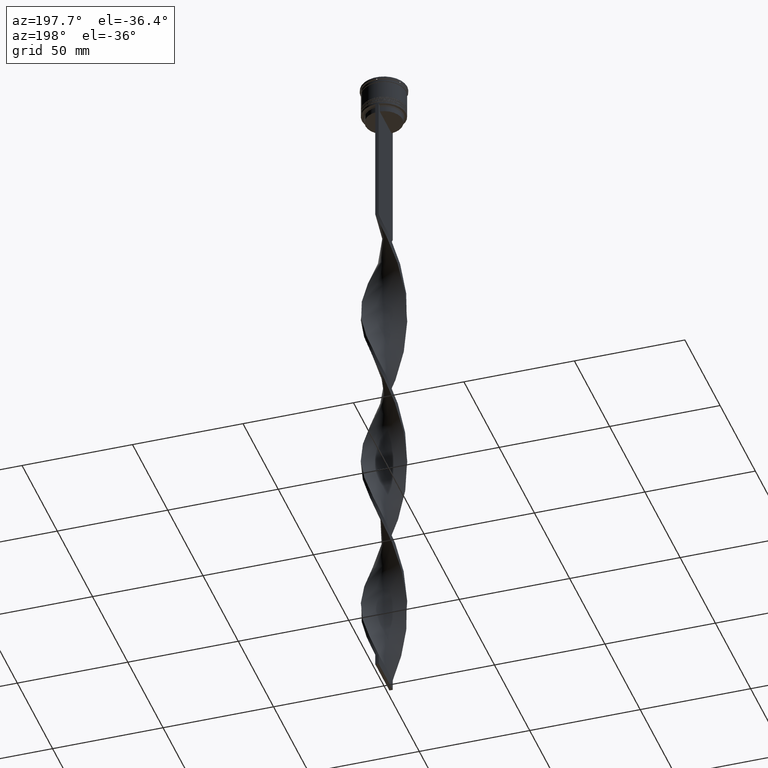
[diagram: clean part render]
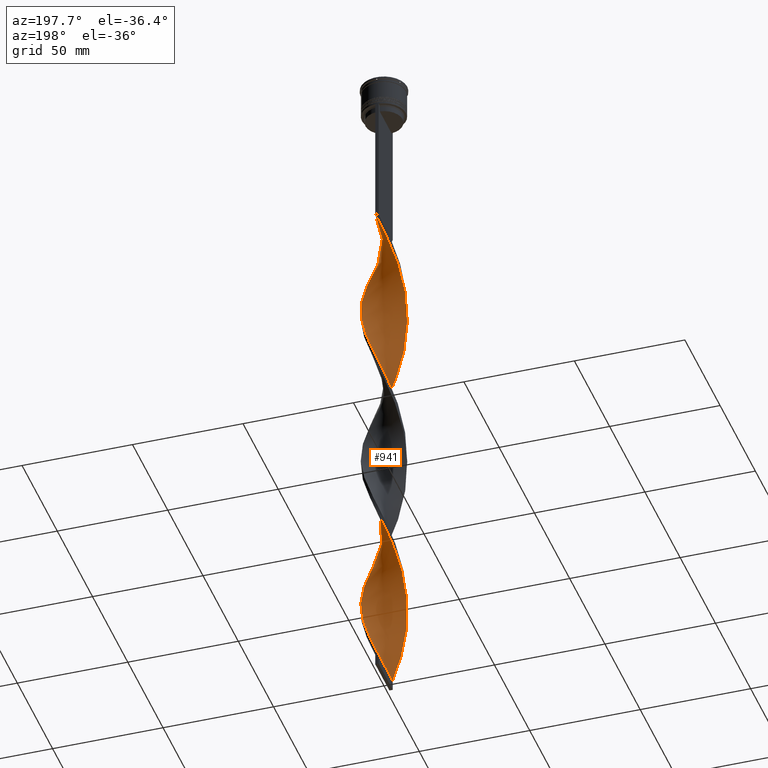
[diagram: same view with one face highlighted and labeled with its STEP entity id]
A machine part, auxiliary view. The second image highlights one B-rep face of the part: STEP entity #941.
In plain terms, the highlighted face is a freeform B-spline surface patch.
Its self-contained STEP definition (entity closure, byte-faithful):
#3 = CARTESIAN_POINT ( 'NONE',  ( -0.03701706824618429537, 10.05902628011846112, -232.3000000000000114 ) ) ;
#10 = CARTESIAN_POINT ( 'NONE',  ( -9.940973719881544213, -1.537017068246187668, -192.9666666666666970 ) ) ;
#20 = CARTESIAN_POINT ( 'NONE',  ( 9.759557557171202546, -2.305110905848663627, -187.0666666666666629 ) ) ;
#27 = B_SPLINE_CURVE_WITH_KNOTS ( 'NONE', 3,
 ( #1002, #2326, #3629, #1750 ),
 .UNSPECIFIED., .F., .F.,
 ( 4, 4 ),
 ( 0.000000000000000000, 1.000000000000000000 ),
 .UNSPECIFIED. ) ;
#29 = CARTESIAN_POINT ( 'NONE',  ( 9.278802417170330941, 3.803462330970840632, -277.5333333333333030 ) ) ;
#39 = CARTESIAN_POINT ( 'NONE',  ( -7.086630674828939824, 7.138980714781986592, -169.3666666666667027 ) ) ;
#46 = CARTESIAN_POINT ( 'NONE',  ( 9.250558116688338828, 3.871650104254189539, -202.8000000000000114 ) ) ;
#73 = CARTESIAN_POINT ( 'NONE',  ( -2.305110905848663183, -9.759557557171202546, -305.0666666666666629 ) ) ;
#80 = CARTESIAN_POINT ( 'NONE',  ( 9.994209254731556413, -0.8235783949559567496, -265.7333333333333485 ) ) ;
#86 = CARTESIAN_POINT ( 'NONE',  ( -3.871650104254190428, 9.250558116688338828, -84.80000000000001137 ) ) ;
#93 = CARTESIAN_POINT ( 'NONE',  ( 7.601397897755390431, -6.540737725975569461, -92.66666666666667140 ) ) ;
#101 = CARTESIAN_POINT ( 'NONE',  ( 3.143615391390495173, 9.555263588120860518, -299.1666666666666856 ) ) ;
#108 = CARTESIAN_POINT ( 'NONE',  ( -7.138980714781979486, 7.086630674828935383, -94.63333333333335418 ) ) ;
#117 = CARTESIAN_POINT ( 'NONE',  ( -5.208159890536744996, -8.569572367079015152, -297.2000000000000455 ) ) ;
#140 = CARTESIAN_POINT ( 'NONE',  ( -2.305110905848663183, -9.759557557171202546, -147.7333333333333201 ) ) ;
#147 = CARTESIAN_POINT ( 'NONE',  ( 9.578141394460878644, 3.073204743451140697, -118.2333333333333343 ) ) ;
#160 = CARTESIAN_POINT ( 'NONE',  ( -9.994209254731549308, -0.8235783949559543071, -116.2666666666666657 ) ) ;
#183 = VERTEX_POINT ( 'NONE', #2327 ) ;
#198 = CARTESIAN_POINT ( 'NONE',  ( -9.250558116688338828, -3.871650104254190428, -281.4666666666666401 ) ) ;
#203 = CARTESIAN_POINT ( 'NONE',  ( 9.940973719881544213, 1.537017068246184337, -271.6333333333332689 ) ) ;
#217 = CARTESIAN_POINT ( 'NONE',  ( 0.8235783949559537520, -9.994209254731549308, -155.6000000000000227 ) ) ;
#219 = CARTESIAN_POINT ( 'NONE',  ( -5.271089777143520116, 8.531008882968830420, -246.0666666666666629 ) ) ;
#235 = CARTESIAN_POINT ( 'NONE',  ( -2.376877556528107949, 9.742327908732745456, -238.1999999999999886 ) ) ;
#246 = CARTESIAN_POINT ( 'NONE',  ( -6.540737725975564132, 7.601397897755385102, -92.66666666666667140 ) ) ;
#249 = CARTESIAN_POINT ( 'NONE',  ( 8.945852645255824243, 4.599684817117886126, -204.7666666666666799 ) ) ;
#253 = EDGE_CURVE ( 'NONE', #183, #400, #1351, .T. ) ;
#271 = CARTESIAN_POINT ( 'NONE',  ( -5.882599862582949868, -8.159681294278259500, -137.9000000000000625 ) ) ;
#276 = CARTESIAN_POINT ( 'NONE',  ( -10.05902628011846112, -0.03701706824618352515, -271.6333333333332689 ) ) ;
#279 = CARTESIAN_POINT ( 'NONE',  ( -3.871650104254195757, -9.250558116688344157, -218.5333333333333314 ) ) ;
#280 = CARTESIAN_POINT ( 'NONE',  ( 7.649331004530123934, 6.484615268705943514, -285.3999999999999773 ) ) ;
#293 = CARTESIAN_POINT ( 'NONE',  ( 6.540737725975563244, -7.601397897755385991, -171.3333333333333428 ) ) ;
#299 = CARTESIAN_POINT ( 'NONE',  ( 8.159681294278264829, 5.882599862582951644, -126.1000000000000227 ) ) ;
#300 = CARTESIAN_POINT ( 'NONE',  ( -8.945852645255827795, 4.599684817117893232, -177.2333333333333485 ) ) ;
#312 = CARTESIAN_POINT ( 'NONE',  ( 5.882599862582947203, 8.159681294278261277, -216.5666666666666629 ) ) ;
#319 = CARTESIAN_POINT ( 'NONE',  ( 9.578141394460878644, 3.073204743451140253, -118.2333333333333485 ) ) ;
#320 = CARTESIAN_POINT ( 'NONE',  ( 6.540737725975569461, 7.601397897755389543, -289.3333333333333144 ) ) ;
#323 =( BOUNDED_SURFACE ( )  B_SPLINE_SURFACE ( 1, 2, ( 
 ( #2509, #3185, #3529, #3866, #3565, #901, #3824, #3884, #1223, #859, #246, #2850, #4186, #1881, #2218, #4169, #3547, #557, #1203, #1569, #577, #1268, #2915, #2522, #1896, #2892, #1915, #1248, #2180, #2564, #2834, #2238, #3240, #271, #1860, #595, #1592, #4234, #3507, #3808, #841, #532, #217, #2582, #3650, #3015, #1024, #3908, #658, #2957, #293, #965, #1349, #1979, #1676, #983, #369, #3990, #20, #2977, #3589, #1329, #2631, #677, #2000, #3305, #46, #3670, #3954, #2605, #3932, #618, #3344, #312, #693, #3325, #2306, #938, #1657, #2286, #3628, #3, #1938, #2649, #352, #1635, #1614, #2993, #3971, #2934, #1001, #1696, #2262, #2325, #640, #2666, #4255, #3262, #1289, #2349, #1960, #2016, #3286, #4277, #1314, #422, #4036, #3111, #1116, #1723, #3082, #3689, #3415, #3395, #117, #445, #764, #3435, #73, #738, #1093 ),
 ( #1375, #2443, #1445, #1749, #1768, #3741, #2086, #3061, #2763, #2420, #93, #787, #4086, #3134, #488, #1419, #3761, #2733, #3779, #2106, #3041, #1792, #4017, #147, #810, #2132, #3716, #1465, #4059, #2784, #2037, #4107, #1136, #1065, #1045, #2694, #2462, #1816, #3462, #714, #3367, #394, #1397, #2391, #550, #4181, #3540, #3949, #1691, #39, #2247, #1946, #2499, #300, #1600, #2616, #3943, #3915, #1988, #2640, #2922, #1518, #2840, #3814, #2315, #3515, #3962, #973, #4241, #3314, #948, #4159, #1275, #627, #847, #2272, #2294, #540, #3496, #3618, #2591, #1844, #2942, #3637, #1172, #3599, #3831, #3271, #3170, #666, #1495, #4288, #2817, #992, #1191, #1868, #518, #3248, #2514, #3294, #1298, #203, #1622, #2167, #4263, #2184, #866, #647, #280, #1968, #320, #4138, #1322, #1644, #2967, #1033, #2401, #2026, #495, #1548, #2383 ) ),
 .UNSPECIFIED., .F., .F., .F. ) 
 B_SPLINE_SURFACE_WITH_KNOTS ( ( 2, 2 ),
 ( 3, 2, 2, 2, 2, 2, 2, 2, 2, 2, 2, 2, 2, 2, 2, 2, 2, 2, 2, 2, 2, 2, 2, 2, 2, 2, 2, 2, 2, 2, 2, 2, 2, 2, 2, 2, 2, 2, 2, 2, 2, 2, 2, 2, 2, 2, 2, 2, 2, 2, 2, 2, 2, 2, 2, 2, 2, 2, 2, 2, 3 ),
 ( 0.000000000000000000, 1.000000000000000000 ),
 ( 0.000000000000000000, 0.01250000000000000069, 0.02500000000000000139, 0.03749999999999999861, 0.05000000000000000278, 0.06250000000000000000, 0.07499999999999999722, 0.08749999999999999445, 0.1000000000000000056, 0.1125000000000000028, 0.1250000000000000000, 0.1375000000000000111, 0.1499999999999999944, 0.1625000000000000056, 0.1749999999999999889, 0.1875000000000000000, 0.2000000000000000111, 0.2124999999999999944, 0.2250000000000000056, 0.2374999999999999889, 0.2500000000000000000, 0.2625000000000000111, 0.2750000000000000222, 0.2874999999999999778, 0.2999999999999999889, 0.3125000000000000000, 0.3250000000000000111, 0.3375000000000000222, 0.3499999999999999778, 0.3624999999999999889, 0.3750000000000000000, 0.3875000000000000111, 0.4000000000000000222, 0.4124999999999999778, 0.4249999999999999889, 0.4375000000000000000, 0.4500000000000000111, 0.4625000000000000222, 0.4749999999999999778, 0.4874999999999999889, 0.5000000000000000000, 0.5124999999999999556, 0.5250000000000000222, 0.5374999999999999778, 0.5500000000000000444, 0.5625000000000000000, 0.5749999999999999556, 0.5875000000000000222, 0.5999999999999999778, 0.6125000000000000444, 0.6250000000000000000, 0.6374999999999999556, 0.6500000000000000222, 0.6624999999999999778, 0.6750000000000000444, 0.6875000000000000000, 0.6999999999999999556, 0.7125000000000000222, 0.7249999999999999778, 0.7375000000000000444, 0.7500000000000000000 ),
 .UNSPECIFIED. ) 
 GEOMETRIC_REPRESENTATION_ITEM ( )  RATIONAL_B_SPLINE_SURFACE ( (
 ( 1.000000000000000000, 0.9969173337331279638, 1.000000000000000000, 0.9969173337331279638, 1.000000000000000000, 0.9969173337331279638, 1.000000000000000000, 0.9969173337331279638, 1.000000000000000000, 0.9969173337331279638, 1.000000000000000000, 0.9969173337331279638, 1.000000000000000000, 0.9969173337331279638, 1.000000000000000000, 0.9969173337331279638, 1.000000000000000000, 0.9969173337331279638, 1.000000000000000000, 0.9969173337331279638, 1.000000000000000000, 0.9969173337331279638, 1.000000000000000000, 0.9969173337331279638, 1.000000000000000000, 0.9969173337331279638, 1.000000000000000000, 0.9969173337331279638, 1.000000000000000000, 0.9969173337331279638, 1.000000000000000000, 0.9969173337331279638, 1.000000000000000000, 0.9969173337331279638, 1.000000000000000000, 0.9969173337331279638, 1.000000000000000000, 0.9969173337331279638, 1.000000000000000000, 0.9969173337331279638, 1.000000000000000000, 0.9969173337331279638, 1.000000000000000000, 0.9969173337331279638, 1.000000000000000000, 0.9969173337331279638, 1.000000000000000000, 0.9969173337331279638, 1.000000000000000000, 0.9969173337331279638, 1.000000000000000000, 0.9969173337331279638, 1.000000000000000000, 0.9969173337331279638, 1.000000000000000000, 0.9969173337331279638, 1.000000000000000000, 0.9969173337331279638, 1.000000000000000000, 0.9969173337331279638, 1.000000000000000000, 0.9969173337331279638, 1.000000000000000000, 0.9969173337331279638, 1.000000000000000000, 0.9969173337331279638, 1.000000000000000000, 0.9969173337331279638, 1.000000000000000000, 0.9969173337331279638, 1.000000000000000000, 0.9969173337331279638, 1.000000000000000000, 0.9969173337331279638, 1.000000000000000000, 0.9969173337331279638, 1.000000000000000000, 0.9969173337331279638, 1.000000000000000000, 0.9969173337331279638, 1.000000000000000000, 0.9969173337331279638, 1.000000000000000000, 0.9969173337331279638, 1.000000000000000000, 0.9969173337331279638, 1.000000000000000000, 0.9969173337331279638, 1.000000000000000000, 0.9969173337331279638, 1.000000000000000000, 0.9969173337331279638, 1.000000000000000000, 0.9969173337331279638, 1.000000000000000000, 0.9969173337331279638, 1.000000000000000000, 0.9969173337331279638, 1.000000000000000000, 0.9969173337331279638, 1.000000000000000000, 0.9969173337331279638, 1.000000000000000000, 0.9969173337331279638, 1.000000000000000000, 0.9969173337331279638, 1.000000000000000000, 0.9969173337331279638, 1.000000000000000000, 0.9969173337331279638, 1.000000000000000000, 0.9969173337331279638, 1.000000000000000000, 0.9969173337331279638, 1.000000000000000000, 0.9969173337331279638, 1.000000000000000000, 0.9969173337331279638, 1.000000000000000000, 0.9969173337331279638, 1.000000000000000000),
 ( 1.000000000000000000, 0.9969173337331279638, 1.000000000000000000, 0.9969173337331279638, 1.000000000000000000, 0.9969173337331279638, 1.000000000000000000, 0.9969173337331279638, 1.000000000000000000, 0.9969173337331279638, 1.000000000000000000, 0.9969173337331279638, 1.000000000000000000, 0.9969173337331279638, 1.000000000000000000, 0.9969173337331279638, 1.000000000000000000, 0.9969173337331279638, 1.000000000000000000, 0.9969173337331279638, 1.000000000000000000, 0.9969173337331279638, 1.000000000000000000, 0.9969173337331279638, 1.000000000000000000, 0.9969173337331279638, 1.000000000000000000, 0.9969173337331279638, 1.000000000000000000, 0.9969173337331279638, 1.000000000000000000, 0.9969173337331279638, 1.000000000000000000, 0.9969173337331279638, 1.000000000000000000, 0.9969173337331279638, 1.000000000000000000, 0.9969173337331279638, 1.000000000000000000, 0.9969173337331279638, 1.000000000000000000, 0.9969173337331279638, 1.000000000000000000, 0.9969173337331279638, 1.000000000000000000, 0.9969173337331279638, 1.000000000000000000, 0.9969173337331279638, 1.000000000000000000, 0.9969173337331279638, 1.000000000000000000, 0.9969173337331279638, 1.000000000000000000, 0.9969173337331279638, 1.000000000000000000, 0.9969173337331279638, 1.000000000000000000, 0.9969173337331279638, 1.000000000000000000, 0.9969173337331279638, 1.000000000000000000, 0.9969173337331279638, 1.000000000000000000, 0.9969173337331279638, 1.000000000000000000, 0.9969173337331279638, 1.000000000000000000, 0.9969173337331279638, 1.000000000000000000, 0.9969173337331279638, 1.000000000000000000, 0.9969173337331279638, 1.000000000000000000, 0.9969173337331279638, 1.000000000000000000, 0.9969173337331279638, 1.000000000000000000, 0.9969173337331279638, 1.000000000000000000, 0.9969173337331279638, 1.000000000000000000, 0.9969173337331279638, 1.000000000000000000, 0.9969173337331279638, 1.000000000000000000, 0.9969173337331279638, 1.000000000000000000, 0.9969173337331279638, 1.000000000000000000, 0.9969173337331279638, 1.000000000000000000, 0.9969173337331279638, 1.000000000000000000, 0.9969173337331279638, 1.000000000000000000, 0.9969173337331279638, 1.000000000000000000, 0.9969173337331279638, 1.000000000000000000, 0.9969173337331279638, 1.000000000000000000, 0.9969173337331279638, 1.000000000000000000, 0.9969173337331279638, 1.000000000000000000, 0.9969173337331279638, 1.000000000000000000, 0.9969173337331279638, 1.000000000000000000, 0.9969173337331279638, 1.000000000000000000, 0.9969173337331279638, 1.000000000000000000, 0.9969173337331279638, 1.000000000000000000, 0.9969173337331279638, 1.000000000000000000, 0.9969173337331279638, 1.000000000000000000, 0.9969173337331279638, 1.000000000000000000) ) ) 
 REPRESENTATION_ITEM ( '' )  SURFACE ( )  );
#344 = CARTESIAN_POINT ( 'NONE',  ( 3.871650104254194869, 9.250558116688344157, -139.8666666666666742 ) ) ;
#352 = CARTESIAN_POINT ( 'NONE',  ( -2.376877556528108393, 9.742327908732745456, -238.1999999999999886 ) ) ;
#360 = CARTESIAN_POINT ( 'NONE',  ( -10.05902628011847000, 0.03701706824619112324, -189.0333333333333314 ) ) ;
#369 = CARTESIAN_POINT ( 'NONE',  ( 9.278802417170323835, -3.803462330970840188, -183.1333333333333258 ) ) ;
#377 = CARTESIAN_POINT ( 'NONE',  ( 5.271089777143525446, 8.531008882968833973, -293.2666666666666515 ) ) ;
#394 = CARTESIAN_POINT ( 'NONE',  ( -1.537017068246183671, 9.940973719881544213, -153.6333333333333826 ) ) ;
#400 = VERTEX_POINT ( 'NONE', #1026 ) ;
#403 = CARTESIAN_POINT ( 'NONE',  ( 4.533719918490542788, -8.979463439879785014, -240.1666666666666856 ) ) ;
#415 = CARTESIAN_POINT ( 'NONE',  ( -1.610139721665725832, 9.929392229344633947, -78.90000000000001990 ) ) ;
#422 = CARTESIAN_POINT ( 'NONE',  ( -9.555263588120853413, -3.143615391390491620, -279.4999999999999432 ) ) ;
#431 = CARTESIAN_POINT ( 'NONE',  ( 9.555263588120860518, -3.143615391390494285, -259.8333333333334281 ) ) ;
#438 = CARTESIAN_POINT ( 'NONE',  ( -0.8235783949559549733, 9.994209254731549308, -76.93333333333333712 ) ) ;
#440 = ORIENTED_EDGE ( 'NONE', *, *, #1076, .F. ) ;
#445 = CARTESIAN_POINT ( 'NONE',  ( -4.533719918490541012, -8.979463439879779685, -299.1666666666666856 ) ) ;
#451 = CARTESIAN_POINT ( 'NONE',  ( 6.540737725975569461, 7.601397897755389543, -289.3333333333333144 ) ) ;
#458 = CARTESIAN_POINT ( 'NONE',  ( 0.7500000000000002220, 9.999999999999998224, -73.00000000000001421 ) ) ;
#472 = CARTESIAN_POINT ( 'NONE',  ( 1.537017068246185003, -9.940973719881544213, -232.3000000000000398 ) ) ;
#481 = CARTESIAN_POINT ( 'NONE',  ( -5.208159890536744996, -8.569572367079015152, -139.8666666666666742 ) ) ;
#488 = CARTESIAN_POINT ( 'NONE',  ( 9.250558116688344157, -3.871650104254194869, -100.5333333333333314 ) ) ;
#495 = CARTESIAN_POINT ( 'NONE',  ( 0.8235783949559573047, 9.994209254731554637, -305.0666666666666629 ) ) ;
#501 = CARTESIAN_POINT ( 'NONE',  ( 1.537017068246185003, -9.940973719881544213, -74.96666666666668277 ) ) ;
#502 = CARTESIAN_POINT ( 'NONE',  ( 7.138980714781975934, -7.086630674828939824, -173.3000000000000114 ) ) ;
#504 = ORIENTED_EDGE ( 'NONE', *, *, #2683, .T. ) ;
#515 = CARTESIAN_POINT ( 'NONE',  ( 10.05902628011846112, 0.03701706824618678643, -192.9666666666666970 ) ) ;
#518 = CARTESIAN_POINT ( 'NONE',  ( 9.742327908732750785, -2.376877556528111057, -261.7999999999999545 ) ) ;
#531 = CARTESIAN_POINT ( 'NONE',  ( -0.7500000000000014433, -9.999999999999998224, -309.0000000000000000 ) ) ;
#532 = CARTESIAN_POINT ( 'NONE',  ( 0.03701706824618297698, -10.05902628011846112, -153.6333333333333826 ) ) ;
#535 = CARTESIAN_POINT ( 'NONE',  ( -9.759557557171204323, 2.305110905848662739, -265.7333333333333485 ) ) ;
#540 = CARTESIAN_POINT ( 'NONE',  ( -1.610139721665725832, -9.929392229344641052, -224.4333333333333655 ) ) ;
#550 = CARTESIAN_POINT ( 'NONE',  ( -3.803462330970839744, 9.278802417170330941, -159.5333333333333314 ) ) ;
#557 = CARTESIAN_POINT ( 'NONE',  ( -9.578141394460869762, 3.073204743451140697, -106.4333333333333513 ) ) ;
#560 = CARTESIAN_POINT ( 'NONE',  ( -9.578141394460869762, 3.073204743451140697, -263.7666666666667084 ) ) ;
#563 = CARTESIAN_POINT ( 'NONE',  ( 9.759557557171202546, -2.305110905848663627, -187.0666666666666629 ) ) ;
#577 = CARTESIAN_POINT ( 'NONE',  ( -9.999999999999998224, 0.7500000000000007772, -112.3333333333333428 ) ) ;
#580 = CARTESIAN_POINT ( 'NONE',  ( -9.278802417170323835, 3.803462330970839744, -261.7999999999999545 ) ) ;
#595 = CARTESIAN_POINT ( 'NONE',  ( -4.533719918490541012, -8.979463439879779685, -141.8333333333333144 ) ) ;
#598 = CARTESIAN_POINT ( 'NONE',  ( -5.942494737169148777, 8.116165120681838374, -248.0333333333333599 ) ) ;
#600 = CARTESIAN_POINT ( 'NONE',  ( -9.759557557171209652, -2.305110905848660963, -194.9333333333333371 ) ) ;
#618 = CARTESIAN_POINT ( 'NONE',  ( 7.086630674828940712, 7.138980714781974157, -212.6333333333333826 ) ) ;
#626 = CARTESIAN_POINT ( 'NONE',  ( -1.610139721665725610, -9.929392229344642828, -224.4333333333333371 ) ) ;
#627 = CARTESIAN_POINT ( 'NONE',  ( -4.599684817117894120, -8.945852645255826019, -216.5666666666666629 ) ) ;
#632 = ORIENTED_EDGE ( 'NONE', *, *, #3224, .F. ) ;
#640 = CARTESIAN_POINT ( 'NONE',  ( -8.569572367079015152, 5.208159890536744108, -257.8666666666666742 ) ) ;
#646 = CARTESIAN_POINT ( 'NONE',  ( -8.116165120681841927, 5.942494737169157659, -173.3000000000000114 ) ) ;
#647 = CARTESIAN_POINT ( 'NONE',  ( 8.159681294278264829, 5.882599862582952532, -283.4333333333333940 ) ) ;
#658 = CARTESIAN_POINT ( 'NONE',  ( 5.271089777143518340, -8.531008882968828644, -167.4000000000000057 ) ) ;
#665 = CARTESIAN_POINT ( 'NONE',  ( 9.994209254731556413, -0.8235783949559567496, -108.3999999999999915 ) ) ;
#666 = CARTESIAN_POINT ( 'NONE',  ( 7.086630674828940712, -7.138980714781985704, -248.0333333333333314 ) ) ;
#677 = CARTESIAN_POINT ( 'NONE',  ( 9.929392229344635723, 1.610139721665719836, -196.9000000000000057 ) ) ;
#685 = CARTESIAN_POINT ( 'NONE',  ( -3.803462330970839744, 9.278802417170330941, -159.5333333333333314 ) ) ;
#693 = CARTESIAN_POINT ( 'NONE',  ( 5.208159890536744996, 8.569572367079015152, -218.5333333333333314 ) ) ;
#702 = CARTESIAN_POINT ( 'NONE',  ( -0.03701706824619165753, -10.05902628011847000, -228.3666666666666742 ) ) ;
#714 = CARTESIAN_POINT ( 'NONE',  ( 0.03701706824618614111, 10.05902628011846822, -149.7000000000000455 ) ) ;
#732 = CARTESIAN_POINT ( 'NONE',  ( -0.7500000000000014433, -9.999999999999998224, -151.6666666666666856 ) ) ;
#738 = CARTESIAN_POINT ( 'NONE',  ( -1.537017068246185891, -9.940973719881535331, -307.0333333333333030 ) ) ;
#745 = CARTESIAN_POINT ( 'NONE',  ( 0.7500000000000001110, -10.00000000000000533, -230.3333333333333428 ) ) ;
#755 = CARTESIAN_POINT ( 'NONE',  ( 0.7500000000000001110, -10.00000000000000533, -73.00000000000001421 ) ) ;
#764 = CARTESIAN_POINT ( 'NONE',  ( -3.803462330970839744, -9.278802417170323835, -301.1333333333333258 ) ) ;
#773 = CARTESIAN_POINT ( 'NONE',  ( 9.759557557171209652, 2.305110905848662739, -273.5999999999999659 ) ) ;
#781 = CARTESIAN_POINT ( 'NONE',  ( -1.537017068246185891, -9.940973719881535331, -149.7000000000000171 ) ) ;
#787 = CARTESIAN_POINT ( 'NONE',  ( 8.116165120681840150, -5.942494737169153218, -94.63333333333335418 ) ) ;
#795 = CARTESIAN_POINT ( 'NONE',  ( 3.871650104254194869, 9.250558116688344157, -297.2000000000000455 ) ) ;
#802 = CARTESIAN_POINT ( 'NONE',  ( 5.942494737169147889, -8.116165120681841927, -169.3666666666667027 ) ) ;
#810 = CARTESIAN_POINT ( 'NONE',  ( 9.278802417170330941, 3.803462330970840632, -120.2000000000000028 ) ) ;
#826 = CARTESIAN_POINT ( 'NONE',  ( 6.540737725975562356, -7.601397897755385991, -171.3333333333333428 ) ) ;
#841 = CARTESIAN_POINT ( 'NONE',  ( -0.7500000000000013323, -9.999999999999998224, -151.6666666666666856 ) ) ;
#843 = CARTESIAN_POINT ( 'NONE',  ( -8.531008882968830420, -5.271089777143518340, -285.3999999999999773 ) ) ;
#847 = CARTESIAN_POINT ( 'NONE',  ( -3.871650104254195757, -9.250558116688344157, -218.5333333333333314 ) ) ;
#859 = CARTESIAN_POINT ( 'NONE',  ( -5.942494737169148777, 8.116165120681838374, -90.70000000000001705 ) ) ;
#862 = CARTESIAN_POINT ( 'NONE',  ( -9.929392229344635723, -1.610139721665724943, -275.5666666666666060 ) ) ;
#866 = CARTESIAN_POINT ( 'NONE',  ( 8.569572367079022257, 5.208159890536745884, -281.4666666666666401 ) ) ;
#883 = CARTESIAN_POINT ( 'NONE',  ( 3.803462330970841521, 9.278802417170323835, -222.4666666666666686 ) ) ;
#901 = CARTESIAN_POINT ( 'NONE',  ( -3.143615391390491620, 9.555263588120853413, -82.83333333333335702 ) ) ;
#904 = CARTESIAN_POINT ( 'NONE',  ( 4.533719918490546341, 8.979463439879776132, -220.5000000000000284 ) ) ;
#906 = CARTESIAN_POINT ( 'NONE',  ( 5.208159890536745884, -8.569572367079022257, -84.80000000000001137 ) ) ;
#924 = CARTESIAN_POINT ( 'NONE',  ( -0.7500000000000014433, -9.999999999999998224, -309.0000000000000000 ) ) ;
#926 = CARTESIAN_POINT ( 'NONE',  ( -5.271089777143526334, -8.531008882968833973, -214.5999999999999943 ) ) ;
#938 = CARTESIAN_POINT ( 'NONE',  ( 3.073204743451137588, 9.578141394460871538, -224.4333333333333655 ) ) ;
#941 = ADVANCED_FACE ( 'NONE', ( #1185 ), #323, .T. ) ;
#947 = CARTESIAN_POINT ( 'NONE',  ( -3.143615391390500502, -9.555263588120856966, -220.5000000000000284 ) ) ;
#948 = CARTESIAN_POINT ( 'NONE',  ( -6.540737725975570349, -7.601397897755387767, -210.6666666666666572 ) ) ;
#965 = CARTESIAN_POINT ( 'NONE',  ( 7.138980714781975934, -7.086630674828940712, -173.3000000000000114 ) ) ;
#972 = CARTESIAN_POINT ( 'NONE',  ( 1.610139721665729162, 9.929392229344641052, -145.7666666666666515 ) ) ;
#973 = CARTESIAN_POINT ( 'NONE',  ( -8.159681294278266606, -5.882599862582948091, -204.7666666666666799 ) ) ;
#983 = CARTESIAN_POINT ( 'NONE',  ( 8.979463439879777908, -4.533719918490545453, -181.1666666666667140 ) ) ;
#991 = CARTESIAN_POINT ( 'NONE',  ( -5.208159890536744996, 8.569572367079022257, -163.4666666666666401 ) ) ;
#992 = CARTESIAN_POINT ( 'NONE',  ( 8.945852645255826019, -4.599684817117896785, -255.9000000000000909 ) ) ;
#1001 = CARTESIAN_POINT ( 'NONE',  ( -6.540737725975564132, 7.601397897755385102, -250.0000000000000000 ) ) ;
#1002 = CARTESIAN_POINT ( 'NONE',  ( -0.7500000000000014433, -9.999999999999998224, -309.0000000000000000 ) ) ;
#1008 = CARTESIAN_POINT ( 'NONE',  ( -1.537017068246183671, 9.940973719881544213, -153.6333333333333826 ) ) ;
#1024 = CARTESIAN_POINT ( 'NONE',  ( 3.871650104254189539, -9.250558116688338828, -163.4666666666666401 ) ) ;
#1026 = CARTESIAN_POINT ( 'NONE',  ( 0.7500000000000002220, 9.999999999999998224, -73.00000000000001421 ) ) ;
#1032 = CARTESIAN_POINT ( 'NONE',  ( 9.742327908732750785, -2.376877556528111057, -261.7999999999999545 ) ) ;
#1033 = CARTESIAN_POINT ( 'NONE',  ( 3.143615391390495173, 9.555263588120860518, -299.1666666666666856 ) ) ;
#1045 = CARTESIAN_POINT ( 'NONE',  ( 3.871650104254194869, 9.250558116688344157, -139.8666666666666742 ) ) ;
#1065 = CARTESIAN_POINT ( 'NONE',  ( 4.599684817117896785, 8.945852645255826019, -137.9000000000000625 ) ) ;
#1074 = CARTESIAN_POINT ( 'NONE',  ( 9.250558116688344157, -3.871650104254194869, -257.8666666666666742 ) ) ;
#1076 = EDGE_CURVE ( 'NONE', #400, #2810, #2866, .T. ) ;
#1084 = CARTESIAN_POINT ( 'NONE',  ( -5.882599862582948980, -8.159681294278255947, -137.9000000000000625 ) ) ;
#1093 = CARTESIAN_POINT ( 'NONE',  ( -0.7500000000000013323, -9.999999999999998224, -309.0000000000000000 ) ) ;
#1102 = CARTESIAN_POINT ( 'NONE',  ( 10.05902628011846822, -0.03701706824618537089, -267.6999999999999318 ) ) ;
#1116 = CARTESIAN_POINT ( 'NONE',  ( -8.531008882968828644, -5.271089777143518340, -285.3999999999999773 ) ) ;
#1131 = CARTESIAN_POINT ( 'NONE',  ( 3.143615391390490732, -9.555263588120853413, -161.5000000000000000 ) ) ;
#1136 = CARTESIAN_POINT ( 'NONE',  ( 5.271089777143525446, 8.531008882968833973, -135.9333333333333371 ) ) ;
#1147 = CARTESIAN_POINT ( 'NONE',  ( -9.278802417170323835, 3.803462330970839744, -104.4666666666666828 ) ) ;
#1151 = VERTEX_POINT ( 'NONE', #2636 ) ;
#1166 = CARTESIAN_POINT ( 'NONE',  ( -7.138980714781979486, 7.086630674828935383, -251.9666666666666686 ) ) ;
#1172 = CARTESIAN_POINT ( 'NONE',  ( 3.803462330970840632, -9.278802417170329164, -238.1999999999999886 ) ) ;
#1185 = FACE_OUTER_BOUND ( 'NONE', #2440, .T. ) ;
#1189 = CARTESIAN_POINT ( 'NONE',  ( 9.994209254731549308, 0.8235783949559529749, -194.9333333333333371 ) ) ;
#1191 = CARTESIAN_POINT ( 'NONE',  ( 9.250558116688344157, -3.871650104254194869, -257.8666666666666742 ) ) ;
#1203 = CARTESIAN_POINT ( 'NONE',  ( -9.759557557171204323, 2.305110905848662739, -108.3999999999999915 ) ) ;
#1206 = CARTESIAN_POINT ( 'NONE',  ( -4.533719918490541012, -8.979463439879777908, -299.1666666666666856 ) ) ;
#1223 = CARTESIAN_POINT ( 'NONE',  ( -5.271089777143520116, 8.531008882968830420, -88.73333333333334849 ) ) ;
#1227 = CARTESIAN_POINT ( 'NONE',  ( -7.649331004530118605, 6.484615268705940849, -253.9333333333333371 ) ) ;
#1248 = CARTESIAN_POINT ( 'NONE',  ( -8.945852645255820690, -4.599684817117892344, -126.1000000000000369 ) ) ;
#1251 = CARTESIAN_POINT ( 'NONE',  ( -8.116165120681838374, -5.942494737169147889, -287.3666666666667311 ) ) ;
#1253 = CARTESIAN_POINT ( 'NONE',  ( -4.533719918490541900, 8.979463439879785014, -161.5000000000000000 ) ) ;
#1268 = CARTESIAN_POINT ( 'NONE',  ( -10.05902628011846112, -0.03701706824618363617, -114.3000000000000398 ) ) ;
#1274 = CARTESIAN_POINT ( 'NONE',  ( -8.569572367079024033, -5.208159890536744996, -202.8000000000000114 ) ) ;
#1275 = CARTESIAN_POINT ( 'NONE',  ( -5.271089777143526334, -8.531008882968833973, -214.5999999999999943 ) ) ;
#1289 = CARTESIAN_POINT ( 'NONE',  ( -9.759557557171204323, 2.305110905848662739, -265.7333333333333485 ) ) ;
#1297 = CARTESIAN_POINT ( 'NONE',  ( 9.759557557171209652, 2.305110905848662739, -116.2666666666666657 ) ) ;
#1298 = CARTESIAN_POINT ( 'NONE',  ( 10.00000000000000533, 0.7499999999999994449, -269.6666666666666856 ) ) ;
#1314 = CARTESIAN_POINT ( 'NONE',  ( -9.742327908732745456, -2.376877556528107949, -277.5333333333333030 ) ) ;
#1320 = CARTESIAN_POINT ( 'NONE',  ( -9.250558116688344157, 3.871650104254195757, -179.1999999999999886 ) ) ;
#1322 = CARTESIAN_POINT ( 'NONE',  ( 5.271089777143525446, 8.531008882968833973, -293.2666666666666515 ) ) ;
#1329 = CARTESIAN_POINT ( 'NONE',  ( 10.05902628011846112, 0.03701706824618689745, -192.9666666666666970 ) ) ;
#1337 = CARTESIAN_POINT ( 'NONE',  ( -9.578141394460880420, -3.073204743451134924, -196.9000000000000057 ) ) ;
#1349 = CARTESIAN_POINT ( 'NONE',  ( 7.649331004530116829, -6.484615268705941737, -175.2666666666666799 ) ) ;
#1351 = LINE ( 'NONE', #3992, #3014 ) ;
#1357 = CARTESIAN_POINT ( 'NONE',  ( 3.073204743451140697, -9.578141394460876867, -236.2333333333333485 ) ) ;
#1375 = CARTESIAN_POINT ( 'NONE',  ( 0.7500000000000001110, -10.00000000000000533, -73.00000000000001421 ) ) ;
#1385 = CARTESIAN_POINT ( 'NONE',  ( 5.942494737169154106, 8.116165120681841927, -291.3000000000000682 ) ) ;
#1397 = CARTESIAN_POINT ( 'NONE',  ( -2.305110905848661851, 9.759557557171209652, -155.6000000000000227 ) ) ;
#1411 = CARTESIAN_POINT ( 'NONE',  ( -8.159681294278255947, 5.882599862582948980, -98.56666666666669130 ) ) ;
#1419 = CARTESIAN_POINT ( 'NONE',  ( 9.555263588120860518, -3.143615391390494285, -102.5000000000000000 ) ) ;
#1427 = CARTESIAN_POINT ( 'NONE',  ( 1.610139721665729162, 9.929392229344641052, -303.0999999999999659 ) ) ;
#1431 = ORIENTED_EDGE ( 'NONE', *, *, #253, .F. ) ;
#1438 = CARTESIAN_POINT ( 'NONE',  ( -9.555263588120853413, -3.143615391390491176, -122.1666666666666856 ) ) ;
#1445 = CARTESIAN_POINT ( 'NONE',  ( 2.305110905848663183, -9.759557557171209652, -76.93333333333333712 ) ) ;
#1460 = CARTESIAN_POINT ( 'NONE',  ( 0.03701706824618287983, -10.05902628011846112, -153.6333333333333826 ) ) ;
#1465 = CARTESIAN_POINT ( 'NONE',  ( 8.159681294278264829, 5.882599862582952532, -126.1000000000000369 ) ) ;
#1479 = CARTESIAN_POINT ( 'NONE',  ( -7.601397897755385102, -6.540737725975563244, -132.0000000000000000 ) ) ;
#1495 = CARTESIAN_POINT ( 'NONE',  ( 7.601397897755390431, -6.540737725975569461, -250.0000000000000000 ) ) ;
#1514 = CARTESIAN_POINT ( 'NONE',  ( -1.537017068246185891, -9.940973719881535331, -307.0333333333333030 ) ) ;
#1518 = CARTESIAN_POINT ( 'NONE',  ( -9.940973719881544213, -1.537017068246187446, -192.9666666666666970 ) ) ;
#1535 = CARTESIAN_POINT ( 'NONE',  ( -9.742327908732745456, -2.376877556528107505, -277.5333333333333030 ) ) ;
#1548 = CARTESIAN_POINT ( 'NONE',  ( 0.03701706824618614111, 10.05902628011846822, -307.0333333333333030 ) ) ;
#1551 = CARTESIAN_POINT ( 'NONE',  ( 9.250558116688338828, 3.871650104254189539, -202.8000000000000114 ) ) ;
#1556 = CARTESIAN_POINT ( 'NONE',  ( 9.940973719881533555, -1.537017068246190998, -189.0333333333333314 ) ) ;
#1569 = CARTESIAN_POINT ( 'NONE',  ( -9.940973719881535331, 1.537017068246185003, -110.3666666666666600 ) ) ;
#1573 = CARTESIAN_POINT ( 'NONE',  ( 9.929392229344637499, 1.610139721665719614, -196.9000000000000057 ) ) ;
#1575 = CARTESIAN_POINT ( 'NONE',  ( 7.601397897755390431, -6.540737725975569461, -92.66666666666667140 ) ) ;
#1592 = CARTESIAN_POINT ( 'NONE',  ( -3.803462330970839744, -9.278802417170323835, -143.7999999999999829 ) ) ;
#1599 = CARTESIAN_POINT ( 'NONE',  ( 5.942494737169154106, 8.116165120681841927, -133.9666666666666686 ) ) ;
#1600 = CARTESIAN_POINT ( 'NONE',  ( -9.250558116688344157, 3.871650104254195757, -179.1999999999999886 ) ) ;
#1614 = CARTESIAN_POINT ( 'NONE',  ( -3.871650104254190428, 9.250558116688338828, -242.1333333333333258 ) ) ;
#1621 = CARTESIAN_POINT ( 'NONE',  ( 0.03701706824618613417, 10.05902628011846822, -149.7000000000000171 ) ) ;
#1622 = CARTESIAN_POINT ( 'NONE',  ( 9.759557557171209652, 2.305110905848662739, -273.5999999999999659 ) ) ;
#1635 = CARTESIAN_POINT ( 'NONE',  ( -3.143615391390491620, 9.555263588120853413, -240.1666666666667140 ) ) ;
#1643 = CARTESIAN_POINT ( 'NONE',  ( -7.086630674828938936, 7.138980714781986592, -169.3666666666667027 ) ) ;
#1644 = CARTESIAN_POINT ( 'NONE',  ( 4.599684817117896785, 8.945852645255826019, -295.2333333333332916 ) ) ;
#1657 = CARTESIAN_POINT ( 'NONE',  ( 2.305110905848663627, 9.759557557171202546, -226.3999999999999773 ) ) ;
#1667 = CARTESIAN_POINT ( 'NONE',  ( -9.742327908732750785, 2.376877556528111946, -183.1333333333333258 ) ) ;
#1676 = CARTESIAN_POINT ( 'NONE',  ( 8.569572367079015152, -5.208159890536744996, -179.1999999999999886 ) ) ;
#1684 = CARTESIAN_POINT ( 'NONE',  ( 4.599684817117896785, 8.945852645255826019, -137.9000000000000625 ) ) ;
#1691 = CARTESIAN_POINT ( 'NONE',  ( -6.484615268705943514, 7.649331004530123934, -167.4000000000000057 ) ) ;
#1696 = CARTESIAN_POINT ( 'NONE',  ( -7.138980714781979486, 7.086630674828936272, -251.9666666666666970 ) ) ;
#1723 = CARTESIAN_POINT ( 'NONE',  ( -8.116165120681838374, -5.942494737169147889, -287.3666666666667311 ) ) ;
#1732 = CARTESIAN_POINT ( 'NONE',  ( 4.599684817117896785, 8.945852645255826019, -295.2333333333333485 ) ) ;
#1741 = CARTESIAN_POINT ( 'NONE',  ( -9.742327908732745456, -2.376877556528107505, -120.2000000000000028 ) ) ;
#1749 = CARTESIAN_POINT ( 'NONE',  ( 3.073204743451141141, -9.578141394460876867, -78.90000000000003411 ) ) ;
#1750 = CARTESIAN_POINT ( 'NONE',  ( -0.7499999999999988898, 10.00000000000000533, -309.0000000000000000 ) ) ;
#1756 = CARTESIAN_POINT ( 'NONE',  ( 7.138980714781985704, 7.086630674828938936, -287.3666666666667311 ) ) ;
#1761 = CARTESIAN_POINT ( 'NONE',  ( 8.945852645255826019, -4.599684817117896785, -98.56666666666669130 ) ) ;
#1762 = CARTESIAN_POINT ( 'NONE',  ( -10.05902628011846112, -0.03701706824618352515, -114.3000000000000256 ) ) ;
#1768 = CARTESIAN_POINT ( 'NONE',  ( 3.803462330970840632, -9.278802417170329164, -80.86666666666667425 ) ) ;
#1775 = CARTESIAN_POINT ( 'NONE',  ( -0.7499999999999988898, 10.00000000000000533, -309.0000000000000000 ) ) ;
#1783 = CARTESIAN_POINT ( 'NONE',  ( -7.649331004530118605, 6.484615268705940849, -96.60000000000000853 ) ) ;
#1792 = CARTESIAN_POINT ( 'NONE',  ( 9.940973719881544213, 1.537017068246184337, -114.3000000000000398 ) ) ;
#1816 = CARTESIAN_POINT ( 'NONE',  ( 1.610139721665729162, 9.929392229344639276, -145.7666666666666515 ) ) ;
#1829 = CARTESIAN_POINT ( 'NONE',  ( -7.086630674828936272, -7.138980714781978598, -133.9666666666666686 ) ) ;
#1842 = CARTESIAN_POINT ( 'NONE',  ( -4.599684817117892344, 8.945852645255822466, -244.0999999999999943 ) ) ;
#1844 = CARTESIAN_POINT ( 'NONE',  ( 1.537017068246185003, -9.940973719881544213, -232.3000000000000114 ) ) ;
#1860 = CARTESIAN_POINT ( 'NONE',  ( -5.208159890536744996, -8.569572367079015152, -139.8666666666666742 ) ) ;
#1863 = CARTESIAN_POINT ( 'NONE',  ( -0.03701706824618418434, 10.05902628011846112, -232.3000000000000398 ) ) ;
#1868 = CARTESIAN_POINT ( 'NONE',  ( 9.555263588120860518, -3.143615391390494285, -259.8333333333334281 ) ) ;
#1881 = CARTESIAN_POINT ( 'NONE',  ( -8.159681294278259500, 5.882599862582949868, -98.56666666666669130 ) ) ;
#1883 = CARTESIAN_POINT ( 'NONE',  ( -9.555263588120853413, -3.143615391390491176, -279.4999999999999432 ) ) ;
#1896 = CARTESIAN_POINT ( 'NONE',  ( -9.742327908732745456, -2.376877556528107949, -120.2000000000000028 ) ) ;
#1900 = CARTESIAN_POINT ( 'NONE',  ( 9.555263588120851637, 3.143615391390493397, -200.8333333333333428 ) ) ;
#1915 = CARTESIAN_POINT ( 'NONE',  ( -9.250558116688338828, -3.871650104254190428, -124.1333333333333400 ) ) ;
#1919 = CARTESIAN_POINT ( 'NONE',  ( 8.116165120681836598, 5.942494737169151442, -208.7000000000000171 ) ) ;
#1924 = CARTESIAN_POINT ( 'NONE',  ( -7.138980714781983927, -7.086630674828942489, -208.7000000000000171 ) ) ;
#1938 = CARTESIAN_POINT ( 'NONE',  ( -0.8235783949559550843, 9.994209254731549308, -234.2666666666666515 ) ) ;
#1945 = CARTESIAN_POINT ( 'NONE',  ( -0.8235783949559584149, -9.994209254731554637, -226.3999999999999773 ) ) ;
#1946 = CARTESIAN_POINT ( 'NONE',  ( -8.116165120681840150, 5.942494737169157659, -173.3000000000000114 ) ) ;
#1960 = CARTESIAN_POINT ( 'NONE',  ( -9.999999999999998224, 0.7500000000000007772, -269.6666666666666856 ) ) ;
#1967 = CARTESIAN_POINT ( 'NONE',  ( 8.979463439879785014, 4.533719918490541900, -122.1666666666666856 ) ) ;
#1968 = CARTESIAN_POINT ( 'NONE',  ( 7.138980714781985704, 7.086630674828939824, -287.3666666666667311 ) ) ;
#1979 = CARTESIAN_POINT ( 'NONE',  ( 8.159681294278261277, -5.882599862582945427, -177.2333333333333485 ) ) ;
#1987 = CARTESIAN_POINT ( 'NONE',  ( 8.569572367079022257, 5.208159890536745884, -124.1333333333333400 ) ) ;
#1988 = CARTESIAN_POINT ( 'NONE',  ( -9.994209254731554637, 0.8235783949559579709, -187.0666666666666629 ) ) ;
#2000 = CARTESIAN_POINT ( 'NONE',  ( 9.742327908732745456, 2.376877556528106172, -198.8666666666666742 ) ) ;
#2008 = CARTESIAN_POINT ( 'NONE',  ( 9.555263588120860518, -3.143615391390494285, -102.5000000000000142 ) ) ;
#2016 = CARTESIAN_POINT ( 'NONE',  ( -10.05902628011846112, -0.03701706824618363617, -271.6333333333332689 ) ) ;
#2024 = CARTESIAN_POINT ( 'NONE',  ( 5.208159890536745884, -8.569572367079022257, -242.1333333333333258 ) ) ;
#2026 = CARTESIAN_POINT ( 'NONE',  ( 1.610139721665729162, 9.929392229344639276, -303.0999999999999659 ) ) ;
#2037 = CARTESIAN_POINT ( 'NONE',  ( 6.540737725975569461, 7.601397897755389543, -132.0000000000000000 ) ) ;
#2056 = CARTESIAN_POINT ( 'NONE',  ( 7.649331004530116829, -6.484615268705941737, -175.2666666666666799 ) ) ;
#2071 = CARTESIAN_POINT ( 'NONE',  ( 8.159681294278264829, 5.882599862582951644, -283.4333333333333940 ) ) ;
#2077 = CARTESIAN_POINT ( 'NONE',  ( 8.116165120681841927, -5.942494737169153218, -94.63333333333335418 ) ) ;
#2078 = CARTESIAN_POINT ( 'NONE',  ( -6.540737725975564132, 7.601397897755385102, -92.66666666666667140 ) ) ;
#2086 = CARTESIAN_POINT ( 'NONE',  ( 5.208159890536745884, -8.569572367079022257, -84.80000000000001137 ) ) ;
#2093 = CARTESIAN_POINT ( 'NONE',  ( 8.116165120681841927, -5.942494737169153218, -251.9666666666666686 ) ) ;
#2106 = CARTESIAN_POINT ( 'NONE',  ( 10.05902628011846822, -0.03701706824618536396, -110.3666666666666600 ) ) ;
#2115 = CARTESIAN_POINT ( 'NONE',  ( 9.578141394460878644, 3.073204743451140253, -275.5666666666666060 ) ) ;
#2123 = CARTESIAN_POINT ( 'NONE',  ( -0.03701706824618418434, 10.05902628011846112, -74.96666666666668277 ) ) ;
#2132 = CARTESIAN_POINT ( 'NONE',  ( 8.979463439879786790, 4.533719918490541900, -122.1666666666666998 ) ) ;
#2148 = CARTESIAN_POINT ( 'NONE',  ( -9.759557557171204323, 2.305110905848662739, -108.3999999999999915 ) ) ;
#2162 = CARTESIAN_POINT ( 'NONE',  ( -7.601397897755385102, -6.540737725975563244, -289.3333333333333144 ) ) ;
#2167 = CARTESIAN_POINT ( 'NONE',  ( 9.578141394460878644, 3.073204743451140697, -275.5666666666666060 ) ) ;
#2180 = CARTESIAN_POINT ( 'NONE',  ( -8.531008882968828644, -5.271089777143518340, -128.0666666666666629 ) ) ;
#2184 = CARTESIAN_POINT ( 'NONE',  ( 8.979463439879786790, 4.533719918490541900, -279.4999999999999432 ) ) ;
#2202 = CARTESIAN_POINT ( 'NONE',  ( 9.742327908732745456, 2.376877556528106172, -198.8666666666666742 ) ) ;
#2218 = CARTESIAN_POINT ( 'NONE',  ( -8.569572367079015152, 5.208159890536744108, -100.5333333333333314 ) ) ;
#2220 = CARTESIAN_POINT ( 'NONE',  ( 8.531008882968828644, 5.271089777143517452, -206.7333333333333201 ) ) ;
#2223 = CARTESIAN_POINT ( 'NONE',  ( 5.882599862582951644, -8.159681294278264829, -86.76666666666666572 ) ) ;
#2238 = CARTESIAN_POINT ( 'NONE',  ( -7.086630674828937160, -7.138980714781979486, -133.9666666666666686 ) ) ;
#2243 = CARTESIAN_POINT ( 'NONE',  ( -7.086630674828936272, -7.138980714781978598, -291.3000000000000682 ) ) ;
#2245 = CARTESIAN_POINT ( 'NONE',  ( -4.599684817117894120, -8.945852645255826019, -216.5666666666666629 ) ) ;
#2247 = CARTESIAN_POINT ( 'NONE',  ( -7.601397897755389543, 6.540737725975570349, -171.3333333333333428 ) ) ;
#2262 = CARTESIAN_POINT ( 'NONE',  ( -7.649331004530118605, 6.484615268705940849, -253.9333333333333371 ) ) ;
#2270 = CARTESIAN_POINT ( 'NONE',  ( -2.376877556528113278, -9.742327908732750785, -222.4666666666666686 ) ) ;
#2272 = CARTESIAN_POINT ( 'NONE',  ( -3.143615391390500058, -9.555263588120856966, -220.5000000000000284 ) ) ;
#2286 = CARTESIAN_POINT ( 'NONE',  ( 1.537017068246191220, 9.940973719881533555, -228.3666666666666458 ) ) ;
#2293 = CARTESIAN_POINT ( 'NONE',  ( -8.531008882968833973, 5.271089777143525446, -175.2666666666666799 ) ) ;
#2294 = CARTESIAN_POINT ( 'NONE',  ( -2.376877556528113278, -9.742327908732750785, -222.4666666666666686 ) ) ;
#2306 = CARTESIAN_POINT ( 'NONE',  ( 3.803462330970841521, 9.278802417170323835, -222.4666666666666686 ) ) ;
#2314 = CARTESIAN_POINT ( 'NONE',  ( -9.555263588120856966, 3.143615391390499614, -181.1666666666666856 ) ) ;
#2315 = CARTESIAN_POINT ( 'NONE',  ( -9.278802417170330941, -3.803462330970838856, -198.8666666666666742 ) ) ;
#2325 = CARTESIAN_POINT ( 'NONE',  ( -8.159681294278259500, 5.882599862582949868, -255.9000000000000909 ) ) ;
#2326 = CARTESIAN_POINT ( 'NONE',  ( -0.7500000000000005551, -3.333333333333330373, -309.0000000000000000 ) ) ;
#2327 = CARTESIAN_POINT ( 'NONE',  ( 0.7500000000000001110, -10.00000000000000533, -73.00000000000001421 ) ) ;
#2332 = CARTESIAN_POINT ( 'NONE',  ( -7.649331004530125711, -6.484615268705942626, -206.7333333333333201 ) ) ;
#2349 = CARTESIAN_POINT ( 'NONE',  ( -9.940973719881535331, 1.537017068246185003, -267.6999999999999318 ) ) ;
#2357 = CARTESIAN_POINT ( 'NONE',  ( 0.03701706824618613417, 10.05902628011846822, -307.0333333333333030 ) ) ;
#2383 = CARTESIAN_POINT ( 'NONE',  ( -0.7499999999999988898, 10.00000000000000533, -309.0000000000000000 ) ) ;
#2391 = CARTESIAN_POINT ( 'NONE',  ( -3.073204743451140253, 9.578141394460878644, -157.5666666666666629 ) ) ;
#2400 = CARTESIAN_POINT ( 'NONE',  ( 3.803462330970840632, -9.278802417170329164, -238.1999999999999886 ) ) ;
#2401 = CARTESIAN_POINT ( 'NONE',  ( 2.376877556528111501, 9.742327908732750785, -301.1333333333333258 ) ) ;
#2411 = CARTESIAN_POINT ( 'NONE',  ( 7.086630674828939824, -7.138980714781985704, -90.70000000000001705 ) ) ;
#2412 = CARTESIAN_POINT ( 'NONE',  ( -6.484615268705941737, -7.649331004530116829, -135.9333333333333371 ) ) ;
#2420 = CARTESIAN_POINT ( 'NONE',  ( 7.086630674828940712, -7.138980714781985704, -90.70000000000001705 ) ) ;
#2428 = CARTESIAN_POINT ( 'NONE',  ( 8.531008882968833973, -5.271089777143523669, -253.9333333333333371 ) ) ;
#2440 = EDGE_LOOP ( 'NONE', ( #1431, #504, #632, #440 ) ) ;
#2443 = CARTESIAN_POINT ( 'NONE',  ( 1.537017068246185003, -9.940973719881544213, -74.96666666666668277 ) ) ;
#2450 = CARTESIAN_POINT ( 'NONE',  ( 9.940973719881544213, 1.537017068246184337, -271.6333333333332689 ) ) ;
#2457 = CARTESIAN_POINT ( 'NONE',  ( 3.871650104254189539, -9.250558116688338828, -163.4666666666666401 ) ) ;
#2462 = CARTESIAN_POINT ( 'NONE',  ( 2.376877556528111501, 9.742327908732750785, -143.7999999999999829 ) ) ;
#2477 = CARTESIAN_POINT ( 'NONE',  ( -9.929392229344635723, -1.610139721665724943, -118.2333333333333485 ) ) ;
#2499 = CARTESIAN_POINT ( 'NONE',  ( -8.531008882968833973, 5.271089777143525446, -175.2666666666666799 ) ) ;
#2509 = CARTESIAN_POINT ( 'NONE',  ( 0.7500000000000001110, 9.999999999999998224, -73.00000000000001421 ) ) ;
#2511 = CARTESIAN_POINT ( 'NONE',  ( -6.484615268705941737, -7.649331004530116829, -293.2666666666666515 ) ) ;
#2514 = CARTESIAN_POINT ( 'NONE',  ( 9.994209254731556413, -0.8235783949559567496, -265.7333333333333485 ) ) ;
#2522 = CARTESIAN_POINT ( 'NONE',  ( -9.929392229344635723, -1.610139721665725387, -118.2333333333333343 ) ) ;
#2524 = CARTESIAN_POINT ( 'NONE',  ( -1.610139721665725832, 9.929392229344633947, -236.2333333333333485 ) ) ;
#2528 = CARTESIAN_POINT ( 'NONE',  ( 8.979463439879776132, -4.533719918490545453, -181.1666666666666856 ) ) ;
#2545 = CARTESIAN_POINT ( 'NONE',  ( -8.159681294278255947, 5.882599862582948980, -255.9000000000000625 ) ) ;
#2548 = CARTESIAN_POINT ( 'NONE',  ( 3.803462330970840632, -9.278802417170329164, -80.86666666666667425 ) ) ;
#2564 = CARTESIAN_POINT ( 'NONE',  ( -8.116165120681838374, -5.942494737169147889, -130.0333333333333314 ) ) ;
#2568 = CARTESIAN_POINT ( 'NONE',  ( -2.305110905848663183, -9.759557557171202546, -305.0666666666666629 ) ) ;
#2570 = CARTESIAN_POINT ( 'NONE',  ( -9.994209254731554637, 0.8235783949559579709, -187.0666666666666629 ) ) ;
#2582 = CARTESIAN_POINT ( 'NONE',  ( 1.610139721665724943, -9.929392229344635723, -157.5666666666666629 ) ) ;
#2584 =( BOUNDED_CURVE ( )  B_SPLINE_CURVE ( 2, ( #755, #501, #4192, #3407, #2548, #3871, #906, #2223, #3552, #2411, #1575, #2077, #3101, #1761, #3073, #2008, #3270, #3658, #665, #3941, #3000, #3914, #1297, #319, #3573, #1967, #1987, #299, #3247, #3313, #2615, #1599, #2639, #1684, #344, #3598, #4287, #972, #2921, #1621, #2941, #1008, #3961, #4240, #685, #1253, #991, #2966, #4262, #1643, #3617, #646, #2293, #3293, #1320, #2314, #1667, #3636, #2570, #360, #2984, #10, #600, #1337, #3334, #2655, #1274, #3979, #2332, #1924, #2590, #3890, #926, #2245, #279, #947, #2270, #626, #1945, #702, #745, #472, #2770, #1357, #2400, #403, #2024, #2701, #3090, #3725, #3421, #2093, #2428, #2674, #1074, #431, #1032, #3067, #80, #1102, #3748, #2450, #773, #2115, #29, #3353, #3375, #2071, #4043, #1756, #451, #1385, #377, #1732, #795, #101, #4000, #1427, #2740, #2357, #1775 ),
 .UNSPECIFIED., .F., .T. ) 
 B_SPLINE_CURVE_WITH_KNOTS ( ( 3, 2, 2, 2, 2, 2, 2, 2, 2, 2, 2, 2, 2, 2, 2, 2, 2, 2, 2, 2, 2, 2, 2, 2, 2, 2, 2, 2, 2, 2, 2, 2, 2, 2, 2, 2, 2, 2, 2, 2, 2, 2, 2, 2, 2, 2, 2, 2, 2, 2, 2, 2, 2, 2, 2, 2, 2, 2, 2, 2, 3 ),
 ( 0.000000000000000000, 0.01250000000000000243, 0.02500000000000000486, 0.03749999999999999861, 0.05000000000000000971, 0.06250000000000000000, 0.07499999999999999722, 0.08749999999999998057, 0.1000000000000000194, 0.1125000000000000028, 0.1250000000000000000, 0.1375000000000000111, 0.1499999999999999944, 0.1625000000000000056, 0.1749999999999999611, 0.1875000000000000000, 0.2000000000000000389, 0.2124999999999999944, 0.2250000000000000056, 0.2374999999999999611, 0.2500000000000000000, 0.2625000000000000111, 0.2750000000000000222, 0.2874999999999999778, 0.2999999999999999889, 0.3125000000000000000, 0.3250000000000000111, 0.3375000000000000777, 0.3499999999999999223, 0.3624999999999999889, 0.3750000000000000000, 0.3875000000000000111, 0.4000000000000000777, 0.4124999999999999223, 0.4249999999999999889, 0.4375000000000000000, 0.4500000000000000111, 0.4625000000000000777, 0.4749999999999999223, 0.4874999999999999889, 0.5000000000000000000, 0.5124999999999999556, 0.5250000000000000222, 0.5374999999999999778, 0.5500000000000000444, 0.5625000000000000000, 0.5749999999999999556, 0.5875000000000000222, 0.5999999999999999778, 0.6125000000000000444, 0.6250000000000000000, 0.6374999999999999556, 0.6500000000000000222, 0.6624999999999999778, 0.6750000000000001554, 0.6875000000000000000, 0.6999999999999998446, 0.7125000000000000222, 0.7249999999999999778, 0.7375000000000001554, 0.7500000000000000000 ),
 .UNSPECIFIED. ) 
 CURVE ( )  GEOMETRIC_REPRESENTATION_ITEM ( )  RATIONAL_B_SPLINE_CURVE ( ( 1.000000000000000000, 0.9969173337331279638, 1.000000000000000000, 0.9969173337331279638, 1.000000000000000000, 0.9969173337331279638, 1.000000000000000000, 0.9969173337331279638, 1.000000000000000000, 0.9969173337331279638, 1.000000000000000000, 0.9969173337331279638, 1.000000000000000000, 0.9969173337331279638, 1.000000000000000000, 0.9969173337331279638, 1.000000000000000000, 0.9969173337331279638, 1.000000000000000000, 0.9969173337331279638, 1.000000000000000000, 0.9969173337331279638, 1.000000000000000000, 0.9969173337331279638, 1.000000000000000000, 0.9969173337331279638, 1.000000000000000000, 0.9969173337331279638, 1.000000000000000000, 0.9969173337331279638, 1.000000000000000000, 0.9969173337331279638, 1.000000000000000000, 0.9969173337331279638, 1.000000000000000000, 0.9969173337331279638, 1.000000000000000000, 0.9969173337331279638, 1.000000000000000000, 0.9969173337331279638, 1.000000000000000000, 0.9969173337331279638, 1.000000000000000000, 0.9969173337331279638, 1.000000000000000000, 0.9969173337331279638, 1.000000000000000000, 0.9969173337331279638, 1.000000000000000000, 0.9969173337331279638, 1.000000000000000000, 0.9969173337331279638, 1.000000000000000000, 0.9969173337331279638, 1.000000000000000000, 0.9969173337331279638, 1.000000000000000000, 0.9969173337331279638, 1.000000000000000000, 0.9969173337331279638, 1.000000000000000000, 0.9969173337331279638, 1.000000000000000000, 0.9969173337331279638, 1.000000000000000000, 0.9969173337331279638, 1.000000000000000000, 0.9969173337331279638, 1.000000000000000000, 0.9969173337331279638, 1.000000000000000000, 0.9969173337331279638, 1.000000000000000000, 0.9969173337331279638, 1.000000000000000000, 0.9969173337331279638, 1.000000000000000000, 0.9969173337331279638, 1.000000000000000000, 0.9969173337331279638, 1.000000000000000000, 0.9969173337331279638, 1.000000000000000000, 0.9969173337331279638, 1.000000000000000000, 0.9969173337331279638, 1.000000000000000000, 0.9969173337331279638, 1.000000000000000000, 0.9969173337331279638, 1.000000000000000000, 0.9969173337331279638, 1.000000000000000000, 0.9969173337331279638, 1.000000000000000000, 0.9969173337331279638, 1.000000000000000000, 0.9969173337331279638, 1.000000000000000000, 0.9969173337331279638, 1.000000000000000000, 0.9969173337331279638, 1.000000000000000000, 0.9969173337331279638, 1.000000000000000000, 0.9969173337331279638, 1.000000000000000000, 0.9969173337331279638, 1.000000000000000000, 0.9969173337331279638, 1.000000000000000000, 0.9969173337331279638, 1.000000000000000000, 0.9969173337331279638, 1.000000000000000000, 0.9969173337331279638, 1.000000000000000000, 0.9969173337331279638, 1.000000000000000000, 0.9969173337331279638, 1.000000000000000000 ) ) 
 REPRESENTATION_ITEM ( '' )  );
#2590 = CARTESIAN_POINT ( 'NONE',  ( -6.540737725975570349, -7.601397897755387767, -210.6666666666666572 ) ) ;
#2591 = CARTESIAN_POINT ( 'NONE',  ( 0.7500000000000001110, -10.00000000000000533, -230.3333333333333428 ) ) ;
#2605 = CARTESIAN_POINT ( 'NONE',  ( 8.116165120681836598, 5.942494737169151442, -208.7000000000000171 ) ) ;
#2615 = CARTESIAN_POINT ( 'NONE',  ( 6.540737725975569461, 7.601397897755389543, -132.0000000000000000 ) ) ;
#2616 = CARTESIAN_POINT ( 'NONE',  ( -9.555263588120856966, 3.143615391390499170, -181.1666666666667140 ) ) ;
#2631 = CARTESIAN_POINT ( 'NONE',  ( 9.994209254731549308, 0.8235783949559530859, -194.9333333333333371 ) ) ;
#2636 = CARTESIAN_POINT ( 'NONE',  ( -0.7499999999999988898, 10.00000000000000533, -309.0000000000000000 ) ) ;
#2639 = CARTESIAN_POINT ( 'NONE',  ( 5.271089777143525446, 8.531008882968833973, -135.9333333333333371 ) ) ;
#2640 = CARTESIAN_POINT ( 'NONE',  ( -10.05902628011847000, 0.03701706824619112324, -189.0333333333333314 ) ) ;
#2649 = CARTESIAN_POINT ( 'NONE',  ( -1.610139721665726054, 9.929392229344633947, -236.2333333333333769 ) ) ;
#2655 = CARTESIAN_POINT ( 'NONE',  ( -8.979463439879783238, -4.533719918490545453, -200.8333333333333428 ) ) ;
#2666 = CARTESIAN_POINT ( 'NONE',  ( -8.979463439879779685, 4.533719918490541012, -259.8333333333334281 ) ) ;
#2674 = CARTESIAN_POINT ( 'NONE',  ( 8.945852645255826019, -4.599684817117896785, -255.9000000000000625 ) ) ;
#2683 = EDGE_CURVE ( 'NONE', #183, #1151, #2584, .T. ) ;
#2694 = CARTESIAN_POINT ( 'NONE',  ( 3.143615391390495173, 9.555263588120860518, -141.8333333333333144 ) ) ;
#2701 = CARTESIAN_POINT ( 'NONE',  ( 5.882599862582951644, -8.159681294278264829, -244.0999999999999943 ) ) ;
#2708 = CARTESIAN_POINT ( 'NONE',  ( -8.979463439879777908, 4.533719918490541012, -102.5000000000000142 ) ) ;
#2726 = CARTESIAN_POINT ( 'NONE',  ( -9.940973719881535331, 1.537017068246185003, -110.3666666666666742 ) ) ;
#2733 = CARTESIAN_POINT ( 'NONE',  ( 9.929392229344639276, -1.610139721665728274, -106.4333333333333513 ) ) ;
#2740 = CARTESIAN_POINT ( 'NONE',  ( 0.8235783949559573047, 9.994209254731554637, -305.0666666666666629 ) ) ;
#2753 = CARTESIAN_POINT ( 'NONE',  ( -3.143615391390492064, 9.555263588120853413, -82.83333333333335702 ) ) ;
#2763 = CARTESIAN_POINT ( 'NONE',  ( 6.484615268705944402, -7.649331004530123934, -88.73333333333334849 ) ) ;
#2770 = CARTESIAN_POINT ( 'NONE',  ( 2.305110905848663183, -9.759557557171209652, -234.2666666666666515 ) ) ;
#2779 = CARTESIAN_POINT ( 'NONE',  ( 0.8235783949559536410, -9.994209254731549308, -155.6000000000000227 ) ) ;
#2784 = CARTESIAN_POINT ( 'NONE',  ( 7.138980714781985704, 7.086630674828939824, -130.0333333333333314 ) ) ;
#2796 = CARTESIAN_POINT ( 'NONE',  ( 1.610139721665724499, -9.929392229344635723, -157.5666666666666913 ) ) ;
#2810 = VERTEX_POINT ( 'NONE', #531 ) ;
#2811 = CARTESIAN_POINT ( 'NONE',  ( -8.569572367079015152, 5.208159890536744108, -257.8666666666666742 ) ) ;
#2817 = CARTESIAN_POINT ( 'NONE',  ( 8.531008882968833973, -5.271089777143523669, -253.9333333333333371 ) ) ;
#2834 = CARTESIAN_POINT ( 'NONE',  ( -7.601397897755385102, -6.540737725975563244, -132.0000000000000000 ) ) ;
#2836 = CARTESIAN_POINT ( 'NONE',  ( 0.7500000000000002220, 9.999999999999998224, -230.3333333333333428 ) ) ;
#2840 = CARTESIAN_POINT ( 'NONE',  ( -9.759557557171209652, -2.305110905848660963, -194.9333333333333371 ) ) ;
#2850 = CARTESIAN_POINT ( 'NONE',  ( -7.138980714781979486, 7.086630674828936272, -94.63333333333335418 ) ) ;
#2853 = CARTESIAN_POINT ( 'NONE',  ( 5.882599862582947203, 8.159681294278259500, -216.5666666666666629 ) ) ;
#2856 = CARTESIAN_POINT ( 'NONE',  ( 9.578141394460871538, -3.073204743451137588, -185.0999999999999943 ) ) ;
#2866 =( BOUNDED_CURVE ( )  B_SPLINE_CURVE ( 2, ( #458, #2123, #438, #415, #3453, #2753, #86, #4102, #3149, #3127, #2078, #108, #1783, #1411, #3478, #2708, #1147, #4030, #2148, #2726, #3074, #1762, #160, #2477, #1741, #1438, #4051, #4117, #3706, #3754, #1479, #1829, #2412, #1084, #481, #3408, #3102, #3735, #140, #781, #732, #1460, #2779, #2796, #4078, #1131, #2457, #3772, #3794, #802, #826, #502, #2056, #3387, #3892, #2528, #2923, #2856, #563, #1556, #3570, #515, #1189, #1573, #2202, #1900, #1551, #249, #2220, #1919, #3205, #3811, #2872, #2853, #3869, #904, #883, #3244, #3888, #4172, #2836, #1863, #3847, #2524, #235, #3221, #4157, #1842, #219, #598, #4189, #1166, #1227, #2545, #2811, #3550, #580, #560, #535, #3826, #3509, #276, #2897, #862, #1535, #1883, #198, #4133, #843, #1251, #2162, #2243, #2511, #3187, #3165, #1206, #3531, #4215, #2568, #1514, #924 ),
 .UNSPECIFIED., .F., .T. ) 
 B_SPLINE_CURVE_WITH_KNOTS ( ( 3, 2, 2, 2, 2, 2, 2, 2, 2, 2, 2, 2, 2, 2, 2, 2, 2, 2, 2, 2, 2, 2, 2, 2, 2, 2, 2, 2, 2, 2, 2, 2, 2, 2, 2, 2, 2, 2, 2, 2, 2, 2, 2, 2, 2, 2, 2, 2, 2, 2, 2, 2, 2, 2, 2, 2, 2, 2, 2, 2, 3 ),
 ( 0.000000000000000000, 0.01250000000000000243, 0.02500000000000000486, 0.03749999999999999861, 0.05000000000000000971, 0.06250000000000000000, 0.07499999999999999722, 0.08749999999999998057, 0.1000000000000000194, 0.1125000000000000028, 0.1250000000000000000, 0.1375000000000000111, 0.1499999999999999944, 0.1625000000000000056, 0.1749999999999999611, 0.1875000000000000000, 0.2000000000000000389, 0.2124999999999999944, 0.2250000000000000056, 0.2374999999999999611, 0.2500000000000000000, 0.2625000000000000111, 0.2750000000000000222, 0.2874999999999999778, 0.2999999999999999889, 0.3125000000000000000, 0.3250000000000000111, 0.3375000000000000777, 0.3499999999999999223, 0.3624999999999999889, 0.3750000000000000000, 0.3875000000000000111, 0.4000000000000000777, 0.4124999999999999223, 0.4249999999999999889, 0.4375000000000000000, 0.4500000000000000111, 0.4625000000000000777, 0.4749999999999999223, 0.4874999999999999889, 0.5000000000000000000, 0.5124999999999999556, 0.5250000000000000222, 0.5374999999999999778, 0.5500000000000000444, 0.5625000000000000000, 0.5749999999999999556, 0.5875000000000000222, 0.5999999999999999778, 0.6125000000000000444, 0.6250000000000000000, 0.6374999999999999556, 0.6500000000000000222, 0.6624999999999999778, 0.6750000000000001554, 0.6875000000000000000, 0.6999999999999998446, 0.7125000000000000222, 0.7249999999999999778, 0.7375000000000001554, 0.7500000000000000000 ),
 .UNSPECIFIED. ) 
 CURVE ( )  GEOMETRIC_REPRESENTATION_ITEM ( )  RATIONAL_B_SPLINE_CURVE ( ( 1.000000000000000000, 0.9969173337331279638, 1.000000000000000000, 0.9969173337331279638, 1.000000000000000000, 0.9969173337331279638, 1.000000000000000000, 0.9969173337331279638, 1.000000000000000000, 0.9969173337331279638, 1.000000000000000000, 0.9969173337331279638, 1.000000000000000000, 0.9969173337331279638, 1.000000000000000000, 0.9969173337331279638, 1.000000000000000000, 0.9969173337331279638, 1.000000000000000000, 0.9969173337331279638, 1.000000000000000000, 0.9969173337331279638, 1.000000000000000000, 0.9969173337331279638, 1.000000000000000000, 0.9969173337331279638, 1.000000000000000000, 0.9969173337331279638, 1.000000000000000000, 0.9969173337331279638, 1.000000000000000000, 0.9969173337331279638, 1.000000000000000000, 0.9969173337331279638, 1.000000000000000000, 0.9969173337331279638, 1.000000000000000000, 0.9969173337331279638, 1.000000000000000000, 0.9969173337331279638, 1.000000000000000000, 0.9969173337331279638, 1.000000000000000000, 0.9969173337331279638, 1.000000000000000000, 0.9969173337331279638, 1.000000000000000000, 0.9969173337331279638, 1.000000000000000000, 0.9969173337331279638, 1.000000000000000000, 0.9969173337331279638, 1.000000000000000000, 0.9969173337331279638, 1.000000000000000000, 0.9969173337331279638, 1.000000000000000000, 0.9969173337331279638, 1.000000000000000000, 0.9969173337331279638, 1.000000000000000000, 0.9969173337331279638, 1.000000000000000000, 0.9969173337331279638, 1.000000000000000000, 0.9969173337331279638, 1.000000000000000000, 0.9969173337331279638, 1.000000000000000000, 0.9969173337331279638, 1.000000000000000000, 0.9969173337331279638, 1.000000000000000000, 0.9969173337331279638, 1.000000000000000000, 0.9969173337331279638, 1.000000000000000000, 0.9969173337331279638, 1.000000000000000000, 0.9969173337331279638, 1.000000000000000000, 0.9969173337331279638, 1.000000000000000000, 0.9969173337331279638, 1.000000000000000000, 0.9969173337331279638, 1.000000000000000000, 0.9969173337331279638, 1.000000000000000000, 0.9969173337331279638, 1.000000000000000000, 0.9969173337331279638, 1.000000000000000000, 0.9969173337331279638, 1.000000000000000000, 0.9969173337331279638, 1.000000000000000000, 0.9969173337331279638, 1.000000000000000000, 0.9969173337331279638, 1.000000000000000000, 0.9969173337331279638, 1.000000000000000000, 0.9969173337331279638, 1.000000000000000000, 0.9969173337331279638, 1.000000000000000000, 0.9969173337331279638, 1.000000000000000000, 0.9969173337331279638, 1.000000000000000000, 0.9969173337331279638, 1.000000000000000000, 0.9969173337331279638, 1.000000000000000000, 0.9969173337331279638, 1.000000000000000000, 0.9969173337331279638, 1.000000000000000000, 0.9969173337331279638, 1.000000000000000000 ) ) 
 REPRESENTATION_ITEM ( '' )  );
#2872 = CARTESIAN_POINT ( 'NONE',  ( 6.484615268705942626, 7.649331004530116829, -214.5999999999999943 ) ) ;
#2892 = CARTESIAN_POINT ( 'NONE',  ( -9.555263588120853413, -3.143615391390491620, -122.1666666666666998 ) ) ;
#2897 = CARTESIAN_POINT ( 'NONE',  ( -9.994209254731549308, -0.8235783949559543071, -273.5999999999999659 ) ) ;
#2915 = CARTESIAN_POINT ( 'NONE',  ( -9.994209254731549308, -0.8235783949559544181, -116.2666666666666657 ) ) ;
#2921 = CARTESIAN_POINT ( 'NONE',  ( 0.8235783949559573047, 9.994209254731554637, -147.7333333333333201 ) ) ;
#2922 = CARTESIAN_POINT ( 'NONE',  ( -10.00000000000000533, -0.7499999999999983347, -191.0000000000000000 ) ) ;
#2923 = CARTESIAN_POINT ( 'NONE',  ( 9.278802417170323835, -3.803462330970840632, -183.1333333333333258 ) ) ;
#2934 = CARTESIAN_POINT ( 'NONE',  ( -5.942494737169148777, 8.116165120681838374, -248.0333333333333314 ) ) ;
#2941 = CARTESIAN_POINT ( 'NONE',  ( -0.7499999999999988898, 10.00000000000000533, -151.6666666666666856 ) ) ;
#2942 = CARTESIAN_POINT ( 'NONE',  ( 2.305110905848663183, -9.759557557171209652, -234.2666666666666515 ) ) ;
#2957 = CARTESIAN_POINT ( 'NONE',  ( 5.942494737169147889, -8.116165120681840150, -169.3666666666667027 ) ) ;
#2966 = CARTESIAN_POINT ( 'NONE',  ( -5.882599862582949868, 8.159681294278264829, -165.4333333333333371 ) ) ;
#2967 = CARTESIAN_POINT ( 'NONE',  ( 3.871650104254194869, 9.250558116688344157, -297.2000000000000455 ) ) ;
#2977 = CARTESIAN_POINT ( 'NONE',  ( 9.940973719881533555, -1.537017068246190554, -189.0333333333333314 ) ) ;
#2984 = CARTESIAN_POINT ( 'NONE',  ( -10.00000000000000533, -0.7499999999999983347, -191.0000000000000000 ) ) ;
#2993 = CARTESIAN_POINT ( 'NONE',  ( -4.599684817117892344, 8.945852645255820690, -244.0999999999999659 ) ) ;
#3000 = CARTESIAN_POINT ( 'NONE',  ( 10.00000000000000533, 0.7499999999999994449, -112.3333333333333428 ) ) ;
#3014 = VECTOR ( 'NONE', #4019, 1000.000000000000000 ) ;
#3015 = CARTESIAN_POINT ( 'NONE',  ( 3.143615391390490732, -9.555263588120853413, -161.5000000000000000 ) ) ;
#3041 = CARTESIAN_POINT ( 'NONE',  ( 10.00000000000000533, 0.7499999999999994449, -112.3333333333333428 ) ) ;
#3061 = CARTESIAN_POINT ( 'NONE',  ( 5.882599862582952532, -8.159681294278264829, -86.76666666666666572 ) ) ;
#3067 = CARTESIAN_POINT ( 'NONE',  ( 9.929392229344641052, -1.610139721665728274, -263.7666666666667084 ) ) ;
#3073 = CARTESIAN_POINT ( 'NONE',  ( 9.250558116688344157, -3.871650104254194869, -100.5333333333333314 ) ) ;
#3074 = CARTESIAN_POINT ( 'NONE',  ( -9.999999999999998224, 0.7500000000000008882, -112.3333333333333428 ) ) ;
#3082 = CARTESIAN_POINT ( 'NONE',  ( -7.601397897755385102, -6.540737725975563244, -289.3333333333333144 ) ) ;
#3090 = CARTESIAN_POINT ( 'NONE',  ( 6.484615268705944402, -7.649331004530123934, -246.0666666666666629 ) ) ;
#3101 = CARTESIAN_POINT ( 'NONE',  ( 8.531008882968833973, -5.271089777143523669, -96.60000000000000853 ) ) ;
#3102 = CARTESIAN_POINT ( 'NONE',  ( -3.803462330970839744, -9.278802417170323835, -143.7999999999999829 ) ) ;
#3111 = CARTESIAN_POINT ( 'NONE',  ( -8.945852645255820690, -4.599684817117892344, -283.4333333333333940 ) ) ;
#3127 = CARTESIAN_POINT ( 'NONE',  ( -5.942494737169148777, 8.116165120681838374, -90.70000000000001705 ) ) ;
#3134 = CARTESIAN_POINT ( 'NONE',  ( 8.945852645255826019, -4.599684817117896785, -98.56666666666669130 ) ) ;
#3149 = CARTESIAN_POINT ( 'NONE',  ( -5.271089777143520116, 8.531008882968830420, -88.73333333333334849 ) ) ;
#3165 = CARTESIAN_POINT ( 'NONE',  ( -5.208159890536744996, -8.569572367079015152, -297.2000000000000455 ) ) ;
#3170 = CARTESIAN_POINT ( 'NONE',  ( 6.484615268705944402, -7.649331004530123934, -246.0666666666666629 ) ) ;
#3185 = CARTESIAN_POINT ( 'NONE',  ( -0.03701706824618429537, 10.05902628011846112, -74.96666666666668277 ) ) ;
#3187 = CARTESIAN_POINT ( 'NONE',  ( -5.882599862582948980, -8.159681294278255947, -295.2333333333333485 ) ) ;
#3205 = CARTESIAN_POINT ( 'NONE',  ( 7.601397897755385991, 6.540737725975562356, -210.6666666666666572 ) ) ;
#3221 = CARTESIAN_POINT ( 'NONE',  ( -3.143615391390492064, 9.555263588120853413, -240.1666666666666856 ) ) ;
#3224 = EDGE_CURVE ( 'NONE', #2810, #1151, #27, .T. ) ;
#3240 = CARTESIAN_POINT ( 'NONE',  ( -6.484615268705941737, -7.649331004530116829, -135.9333333333333371 ) ) ;
#3244 = CARTESIAN_POINT ( 'NONE',  ( 3.073204743451137588, 9.578141394460871538, -224.4333333333333371 ) ) ;
#3247 = CARTESIAN_POINT ( 'NONE',  ( 7.649331004530123934, 6.484615268705943514, -128.0666666666666629 ) ) ;
#3248 = CARTESIAN_POINT ( 'NONE',  ( 9.929392229344639276, -1.610139721665728274, -263.7666666666667652 ) ) ;
#3262 = CARTESIAN_POINT ( 'NONE',  ( -9.578141394460869762, 3.073204743451140697, -263.7666666666667652 ) ) ;
#3270 = CARTESIAN_POINT ( 'NONE',  ( 9.742327908732750785, -2.376877556528111057, -104.4666666666666828 ) ) ;
#3271 = CARTESIAN_POINT ( 'NONE',  ( 5.882599862582952532, -8.159681294278264829, -244.0999999999999659 ) ) ;
#3286 = CARTESIAN_POINT ( 'NONE',  ( -9.994209254731549308, -0.8235783949559544181, -273.5999999999999659 ) ) ;
#3293 = CARTESIAN_POINT ( 'NONE',  ( -8.945852645255827795, 4.599684817117893232, -177.2333333333333485 ) ) ;
#3294 = CARTESIAN_POINT ( 'NONE',  ( 10.05902628011846822, -0.03701706824618536396, -267.6999999999999318 ) ) ;
#3305 = CARTESIAN_POINT ( 'NONE',  ( 9.555263588120851637, 3.143615391390493397, -200.8333333333333428 ) ) ;
#3313 = CARTESIAN_POINT ( 'NONE',  ( 7.138980714781985704, 7.086630674828938936, -130.0333333333333314 ) ) ;
#3314 = CARTESIAN_POINT ( 'NONE',  ( -7.138980714781983927, -7.086630674828942489, -208.7000000000000171 ) ) ;
#3325 = CARTESIAN_POINT ( 'NONE',  ( 4.533719918490545453, 8.979463439879777908, -220.5000000000000284 ) ) ;
#3334 = CARTESIAN_POINT ( 'NONE',  ( -9.278802417170330941, -3.803462330970838856, -198.8666666666666742 ) ) ;
#3344 = CARTESIAN_POINT ( 'NONE',  ( 6.484615268705942626, 7.649331004530116829, -214.5999999999999943 ) ) ;
#3353 = CARTESIAN_POINT ( 'NONE',  ( 8.979463439879785014, 4.533719918490541900, -279.4999999999999432 ) ) ;
#3367 = CARTESIAN_POINT ( 'NONE',  ( -0.7499999999999988898, 10.00000000000000533, -151.6666666666666856 ) ) ;
#3375 = CARTESIAN_POINT ( 'NONE',  ( 8.569572367079022257, 5.208159890536745884, -281.4666666666666401 ) ) ;
#3387 = CARTESIAN_POINT ( 'NONE',  ( 8.159681294278259500, -5.882599862582945427, -177.2333333333333485 ) ) ;
#3395 = CARTESIAN_POINT ( 'NONE',  ( -5.882599862582949868, -8.159681294278259500, -295.2333333333332916 ) ) ;
#3407 = CARTESIAN_POINT ( 'NONE',  ( 3.073204743451140697, -9.578141394460876867, -78.90000000000001990 ) ) ;
#3408 = CARTESIAN_POINT ( 'NONE',  ( -4.533719918490541012, -8.979463439879777908, -141.8333333333333428 ) ) ;
#3415 = CARTESIAN_POINT ( 'NONE',  ( -6.484615268705941737, -7.649331004530116829, -293.2666666666666515 ) ) ;
#3421 = CARTESIAN_POINT ( 'NONE',  ( 7.601397897755390431, -6.540737725975569461, -250.0000000000000000 ) ) ;
#3435 = CARTESIAN_POINT ( 'NONE',  ( -3.073204743451141141, -9.578141394460869762, -303.0999999999999659 ) ) ;
#3453 = CARTESIAN_POINT ( 'NONE',  ( -2.376877556528107949, 9.742327908732745456, -80.86666666666667425 ) ) ;
#3462 = CARTESIAN_POINT ( 'NONE',  ( 0.8235783949559573047, 9.994209254731554637, -147.7333333333333201 ) ) ;
#3478 = CARTESIAN_POINT ( 'NONE',  ( -8.569572367079015152, 5.208159890536744108, -100.5333333333333314 ) ) ;
#3496 = CARTESIAN_POINT ( 'NONE',  ( -0.8235783949559584149, -9.994209254731554637, -226.3999999999999773 ) ) ;
#3507 = CARTESIAN_POINT ( 'NONE',  ( -2.305110905848663183, -9.759557557171202546, -147.7333333333333201 ) ) ;
#3509 = CARTESIAN_POINT ( 'NONE',  ( -9.999999999999998224, 0.7500000000000008882, -269.6666666666666856 ) ) ;
#3515 = CARTESIAN_POINT ( 'NONE',  ( -8.979463439879785014, -4.533719918490545453, -200.8333333333333428 ) ) ;
#3529 = CARTESIAN_POINT ( 'NONE',  ( -0.8235783949559550843, 9.994209254731549308, -76.93333333333333712 ) ) ;
#3531 = CARTESIAN_POINT ( 'NONE',  ( -3.803462330970839744, -9.278802417170323835, -301.1333333333333258 ) ) ;
#3540 = CARTESIAN_POINT ( 'NONE',  ( -5.208159890536744996, 8.569572367079022257, -163.4666666666666401 ) ) ;
#3547 = CARTESIAN_POINT ( 'NONE',  ( -9.278802417170323835, 3.803462330970839300, -104.4666666666666828 ) ) ;
#3550 = CARTESIAN_POINT ( 'NONE',  ( -8.979463439879777908, 4.533719918490541012, -259.8333333333334281 ) ) ;
#3552 = CARTESIAN_POINT ( 'NONE',  ( 6.484615268705944402, -7.649331004530123934, -88.73333333333334849 ) ) ;
#3565 = CARTESIAN_POINT ( 'NONE',  ( -2.376877556528108393, 9.742327908732745456, -80.86666666666667425 ) ) ;
#3570 = CARTESIAN_POINT ( 'NONE',  ( 9.999999999999998224, -0.7500000000000021094, -191.0000000000000000 ) ) ;
#3573 = CARTESIAN_POINT ( 'NONE',  ( 9.278802417170330941, 3.803462330970840632, -120.2000000000000028 ) ) ;
#3589 = CARTESIAN_POINT ( 'NONE',  ( 9.999999999999998224, -0.7500000000000019984, -191.0000000000000000 ) ) ;
#3598 = CARTESIAN_POINT ( 'NONE',  ( 3.143615391390495173, 9.555263588120860518, -141.8333333333333428 ) ) ;
#3599 = CARTESIAN_POINT ( 'NONE',  ( 4.533719918490542788, -8.979463439879786790, -240.1666666666667140 ) ) ;
#3617 = CARTESIAN_POINT ( 'NONE',  ( -7.601397897755389543, 6.540737725975570349, -171.3333333333333428 ) ) ;
#3618 = CARTESIAN_POINT ( 'NONE',  ( -0.03701706824619165753, -10.05902628011847000, -228.3666666666666458 ) ) ;
#3628 = CARTESIAN_POINT ( 'NONE',  ( 0.7500000000000001110, 9.999999999999998224, -230.3333333333333428 ) ) ;
#3629 = CARTESIAN_POINT ( 'NONE',  ( -0.7499999999999997780, 3.333333333333337478, -309.0000000000000000 ) ) ;
#3636 = CARTESIAN_POINT ( 'NONE',  ( -9.929392229344642828, 1.610139721665725165, -185.0999999999999943 ) ) ;
#3637 = CARTESIAN_POINT ( 'NONE',  ( 3.073204743451141141, -9.578141394460876867, -236.2333333333333769 ) ) ;
#3650 = CARTESIAN_POINT ( 'NONE',  ( 2.376877556528107061, -9.742327908732745456, -159.5333333333333314 ) ) ;
#3658 = CARTESIAN_POINT ( 'NONE',  ( 9.929392229344641052, -1.610139721665728274, -106.4333333333333513 ) ) ;
#3670 = CARTESIAN_POINT ( 'NONE',  ( 8.945852645255822466, 4.599684817117887015, -204.7666666666666799 ) ) ;
#3689 = CARTESIAN_POINT ( 'NONE',  ( -7.086630674828937160, -7.138980714781979486, -291.3000000000000682 ) ) ;
#3706 = CARTESIAN_POINT ( 'NONE',  ( -8.531008882968830420, -5.271089777143518340, -128.0666666666666629 ) ) ;
#3716 = CARTESIAN_POINT ( 'NONE',  ( 8.569572367079022257, 5.208159890536745884, -124.1333333333333400 ) ) ;
#3725 = CARTESIAN_POINT ( 'NONE',  ( 7.086630674828939824, -7.138980714781985704, -248.0333333333333599 ) ) ;
#3735 = CARTESIAN_POINT ( 'NONE',  ( -3.073204743451140697, -9.578141394460869762, -145.7666666666666515 ) ) ;
#3741 = CARTESIAN_POINT ( 'NONE',  ( 4.533719918490542788, -8.979463439879786790, -82.83333333333335702 ) ) ;
#3748 = CARTESIAN_POINT ( 'NONE',  ( 10.00000000000000533, 0.7499999999999994449, -269.6666666666666856 ) ) ;
#3754 = CARTESIAN_POINT ( 'NONE',  ( -8.116165120681838374, -5.942494737169147889, -130.0333333333333314 ) ) ;
#3761 = CARTESIAN_POINT ( 'NONE',  ( 9.742327908732750785, -2.376877556528111057, -104.4666666666666828 ) ) ;
#3772 = CARTESIAN_POINT ( 'NONE',  ( 4.599684817117890567, -8.945852645255822466, -165.4333333333333371 ) ) ;
#3779 = CARTESIAN_POINT ( 'NONE',  ( 9.994209254731556413, -0.8235783949559567496, -108.3999999999999915 ) ) ;
#3794 = CARTESIAN_POINT ( 'NONE',  ( 5.271089777143518340, -8.531008882968830420, -167.4000000000000057 ) ) ;
#3808 = CARTESIAN_POINT ( 'NONE',  ( -1.537017068246185891, -9.940973719881535331, -149.7000000000000455 ) ) ;
#3811 = CARTESIAN_POINT ( 'NONE',  ( 7.086630674828939824, 7.138980714781974157, -212.6333333333333826 ) ) ;
#3814 = CARTESIAN_POINT ( 'NONE',  ( -9.578141394460880420, -3.073204743451134924, -196.9000000000000057 ) ) ;
#3824 = CARTESIAN_POINT ( 'NONE',  ( -3.871650104254190428, 9.250558116688338828, -84.80000000000001137 ) ) ;
#3826 = CARTESIAN_POINT ( 'NONE',  ( -9.940973719881535331, 1.537017068246185003, -267.6999999999999318 ) ) ;
#3831 = CARTESIAN_POINT ( 'NONE',  ( 5.208159890536745884, -8.569572367079022257, -242.1333333333333258 ) ) ;
#3847 = CARTESIAN_POINT ( 'NONE',  ( -0.8235783949559549733, 9.994209254731549308, -234.2666666666666515 ) ) ;
#3866 = CARTESIAN_POINT ( 'NONE',  ( -1.610139721665726054, 9.929392229344633947, -78.90000000000003411 ) ) ;
#3869 = CARTESIAN_POINT ( 'NONE',  ( 5.208159890536744996, 8.569572367079015152, -218.5333333333333314 ) ) ;
#3871 = CARTESIAN_POINT ( 'NONE',  ( 4.533719918490542788, -8.979463439879785014, -82.83333333333335702 ) ) ;
#3884 = CARTESIAN_POINT ( 'NONE',  ( -4.599684817117892344, 8.945852645255820690, -86.76666666666666572 ) ) ;
#3888 = CARTESIAN_POINT ( 'NONE',  ( 2.305110905848664071, 9.759557557171202546, -226.3999999999999773 ) ) ;
#3890 = CARTESIAN_POINT ( 'NONE',  ( -5.942494737169157659, -8.116165120681838374, -212.6333333333333826 ) ) ;
#3892 = CARTESIAN_POINT ( 'NONE',  ( 8.569572367079015152, -5.208159890536744996, -179.1999999999999886 ) ) ;
#3908 = CARTESIAN_POINT ( 'NONE',  ( 4.599684817117890567, -8.945852645255820690, -165.4333333333333655 ) ) ;
#3914 = CARTESIAN_POINT ( 'NONE',  ( 9.940973719881544213, 1.537017068246184337, -114.3000000000000256 ) ) ;
#3915 = CARTESIAN_POINT ( 'NONE',  ( -9.929392229344641052, 1.610139721665725387, -185.0999999999999659 ) ) ;
#3932 = CARTESIAN_POINT ( 'NONE',  ( 7.601397897755385991, 6.540737725975562356, -210.6666666666666572 ) ) ;
#3941 = CARTESIAN_POINT ( 'NONE',  ( 10.05902628011846822, -0.03701706824618537089, -110.3666666666666742 ) ) ;
#3943 = CARTESIAN_POINT ( 'NONE',  ( -9.742327908732750785, 2.376877556528111946, -183.1333333333333258 ) ) ;
#3949 = CARTESIAN_POINT ( 'NONE',  ( -5.882599862582950756, 8.159681294278264829, -165.4333333333333655 ) ) ;
#3954 = CARTESIAN_POINT ( 'NONE',  ( 8.531008882968828644, 5.271089777143517452, -206.7333333333333201 ) ) ;
#3961 = CARTESIAN_POINT ( 'NONE',  ( -2.305110905848661851, 9.759557557171209652, -155.6000000000000227 ) ) ;
#3962 = CARTESIAN_POINT ( 'NONE',  ( -8.569572367079024033, -5.208159890536744996, -202.8000000000000114 ) ) ;
#3971 = CARTESIAN_POINT ( 'NONE',  ( -5.271089777143520116, 8.531008882968830420, -246.0666666666666629 ) ) ;
#3979 = CARTESIAN_POINT ( 'NONE',  ( -8.159681294278266606, -5.882599862582947203, -204.7666666666666799 ) ) ;
#3990 = CARTESIAN_POINT ( 'NONE',  ( 9.578141394460871538, -3.073204743451137144, -185.0999999999999659 ) ) ;
#3992 = CARTESIAN_POINT ( 'NONE',  ( 0.7500000000000001110, -10.00000000000000533, -73.00000000000001421 ) ) ;
#4000 = CARTESIAN_POINT ( 'NONE',  ( 2.376877556528111501, 9.742327908732750785, -301.1333333333333258 ) ) ;
#4017 = CARTESIAN_POINT ( 'NONE',  ( 9.759557557171209652, 2.305110905848662739, -116.2666666666666657 ) ) ;
#4019 = DIRECTION ( 'NONE',  ( 0.000000000000000000, 1.000000000000000000, 0.000000000000000000 ) ) ;
#4030 = CARTESIAN_POINT ( 'NONE',  ( -9.578141394460869762, 3.073204743451140697, -106.4333333333333513 ) ) ;
#4036 = CARTESIAN_POINT ( 'NONE',  ( -9.250558116688338828, -3.871650104254190428, -281.4666666666666401 ) ) ;
#4043 = CARTESIAN_POINT ( 'NONE',  ( 7.649331004530123934, 6.484615268705943514, -285.3999999999999773 ) ) ;
#4051 = CARTESIAN_POINT ( 'NONE',  ( -9.250558116688338828, -3.871650104254190428, -124.1333333333333400 ) ) ;
#4059 = CARTESIAN_POINT ( 'NONE',  ( 7.649331004530123934, 6.484615268705943514, -128.0666666666666629 ) ) ;
#4078 = CARTESIAN_POINT ( 'NONE',  ( 2.376877556528107061, -9.742327908732745456, -159.5333333333333314 ) ) ;
#4086 = CARTESIAN_POINT ( 'NONE',  ( 8.531008882968833973, -5.271089777143523669, -96.60000000000000853 ) ) ;
#4102 = CARTESIAN_POINT ( 'NONE',  ( -4.599684817117892344, 8.945852645255822466, -86.76666666666666572 ) ) ;
#4107 = CARTESIAN_POINT ( 'NONE',  ( 5.942494737169154106, 8.116165120681840150, -133.9666666666666686 ) ) ;
#4117 = CARTESIAN_POINT ( 'NONE',  ( -8.945852645255822466, -4.599684817117892344, -126.1000000000000227 ) ) ;
#4133 = CARTESIAN_POINT ( 'NONE',  ( -8.945852645255822466, -4.599684817117892344, -283.4333333333333940 ) ) ;
#4138 = CARTESIAN_POINT ( 'NONE',  ( 5.942494737169154106, 8.116165120681840150, -291.3000000000000682 ) ) ;
#4157 = CARTESIAN_POINT ( 'NONE',  ( -3.871650104254190428, 9.250558116688338828, -242.1333333333333258 ) ) ;
#4159 = CARTESIAN_POINT ( 'NONE',  ( -5.942494737169157659, -8.116165120681838374, -212.6333333333333826 ) ) ;
#4169 = CARTESIAN_POINT ( 'NONE',  ( -8.979463439879779685, 4.533719918490541012, -102.5000000000000000 ) ) ;
#4172 = CARTESIAN_POINT ( 'NONE',  ( 1.537017068246191664, 9.940973719881533555, -228.3666666666666742 ) ) ;
#4181 = CARTESIAN_POINT ( 'NONE',  ( -4.533719918490541900, 8.979463439879786790, -161.5000000000000000 ) ) ;
#4186 = CARTESIAN_POINT ( 'NONE',  ( -7.649331004530118605, 6.484615268705940849, -96.60000000000000853 ) ) ;
#4189 = CARTESIAN_POINT ( 'NONE',  ( -6.540737725975564132, 7.601397897755385102, -250.0000000000000000 ) ) ;
#4192 = CARTESIAN_POINT ( 'NONE',  ( 2.305110905848663183, -9.759557557171209652, -76.93333333333333712 ) ) ;
#4215 = CARTESIAN_POINT ( 'NONE',  ( -3.073204743451140697, -9.578141394460869762, -303.0999999999999659 ) ) ;
#4234 = CARTESIAN_POINT ( 'NONE',  ( -3.073204743451141141, -9.578141394460869762, -145.7666666666666515 ) ) ;
#4240 = CARTESIAN_POINT ( 'NONE',  ( -3.073204743451139809, 9.578141394460878644, -157.5666666666666913 ) ) ;
#4241 = CARTESIAN_POINT ( 'NONE',  ( -7.649331004530125711, -6.484615268705942626, -206.7333333333333201 ) ) ;
#4255 = CARTESIAN_POINT ( 'NONE',  ( -9.278802417170323835, 3.803462330970839300, -261.7999999999999545 ) ) ;
#4262 = CARTESIAN_POINT ( 'NONE',  ( -6.484615268705943514, 7.649331004530123934, -167.4000000000000057 ) ) ;
#4263 = CARTESIAN_POINT ( 'NONE',  ( 9.278802417170330941, 3.803462330970840632, -277.5333333333333030 ) ) ;
#4277 = CARTESIAN_POINT ( 'NONE',  ( -9.929392229344635723, -1.610139721665725387, -275.5666666666666060 ) ) ;
#4287 = CARTESIAN_POINT ( 'NONE',  ( 2.376877556528111501, 9.742327908732750785, -143.7999999999999829 ) ) ;
#4288 = CARTESIAN_POINT ( 'NONE',  ( 8.116165120681840150, -5.942494737169153218, -251.9666666666666970 ) ) ;